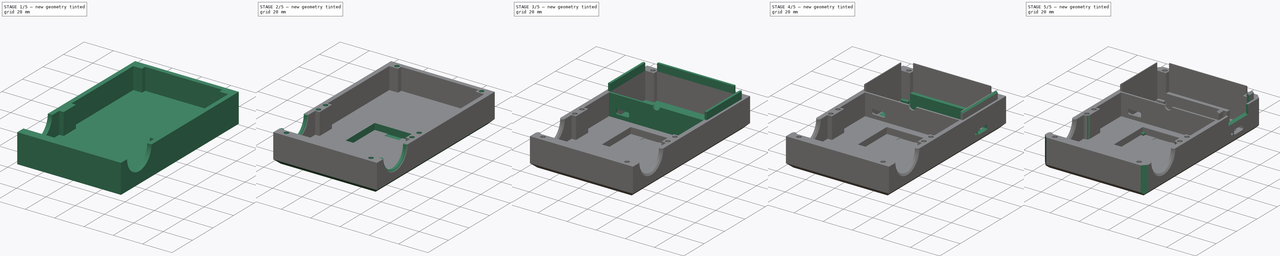
[diagram: build sequence overview — one tinted view per stage of 5, left to right]
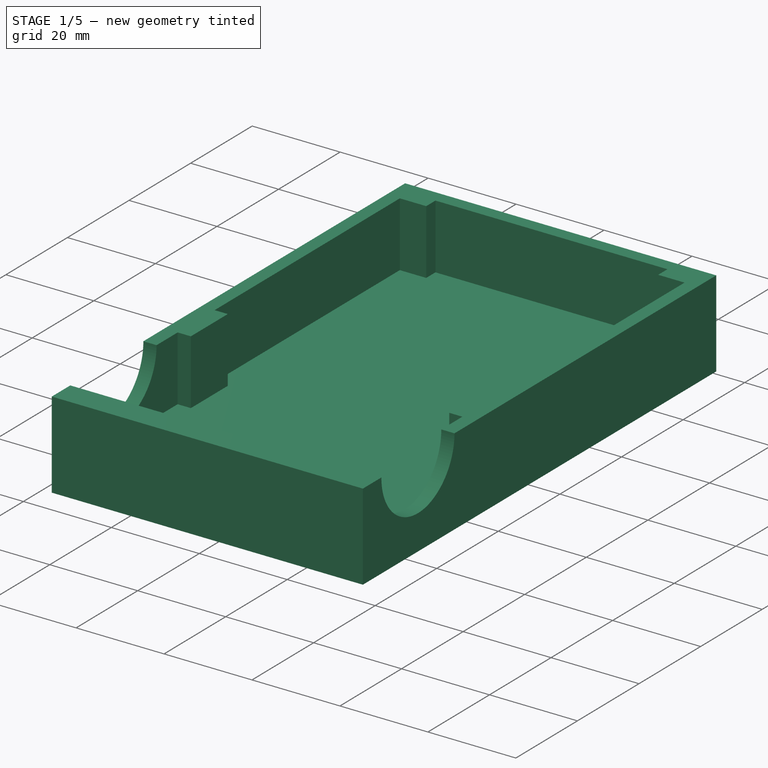
[diagram: stage 1 of 5 — iso view after this stage's code; geometry added in this stage tinted green]
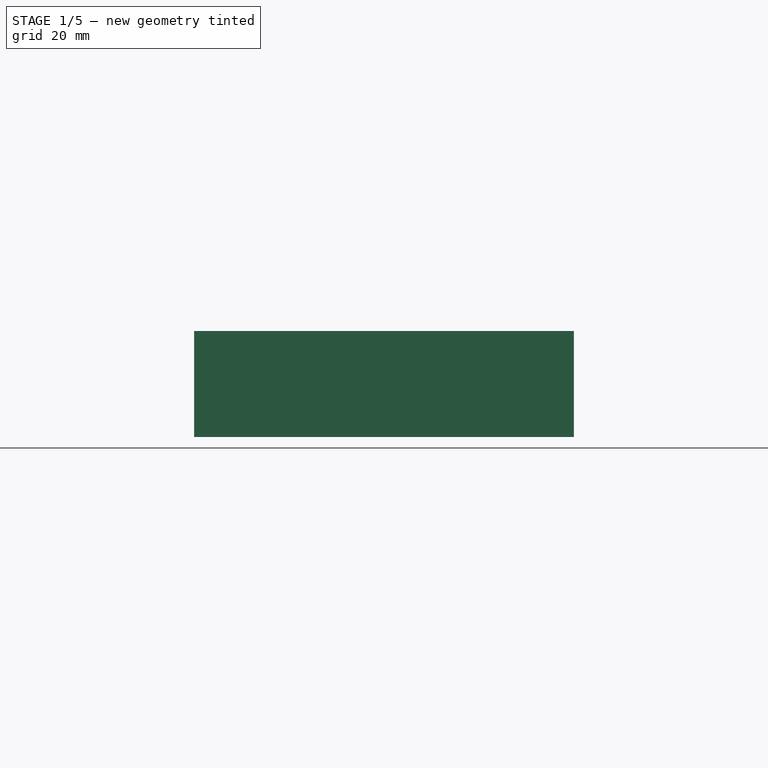
[diagram: stage 1 of 5 — front view after this stage's code; geometry added in this stage tinted green]
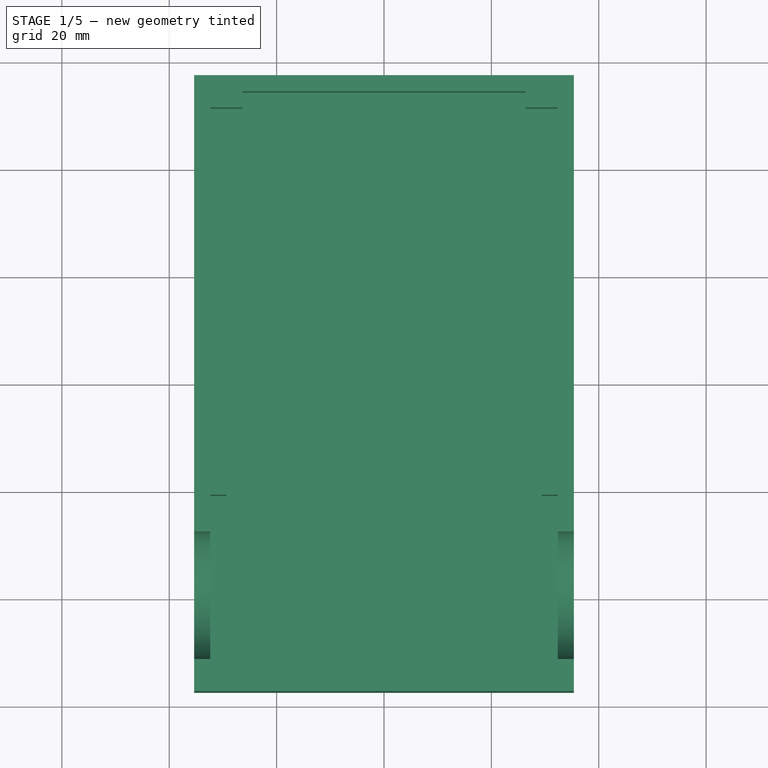
[diagram: stage 1 of 5 — top view after this stage's code; geometry added in this stage tinted green]
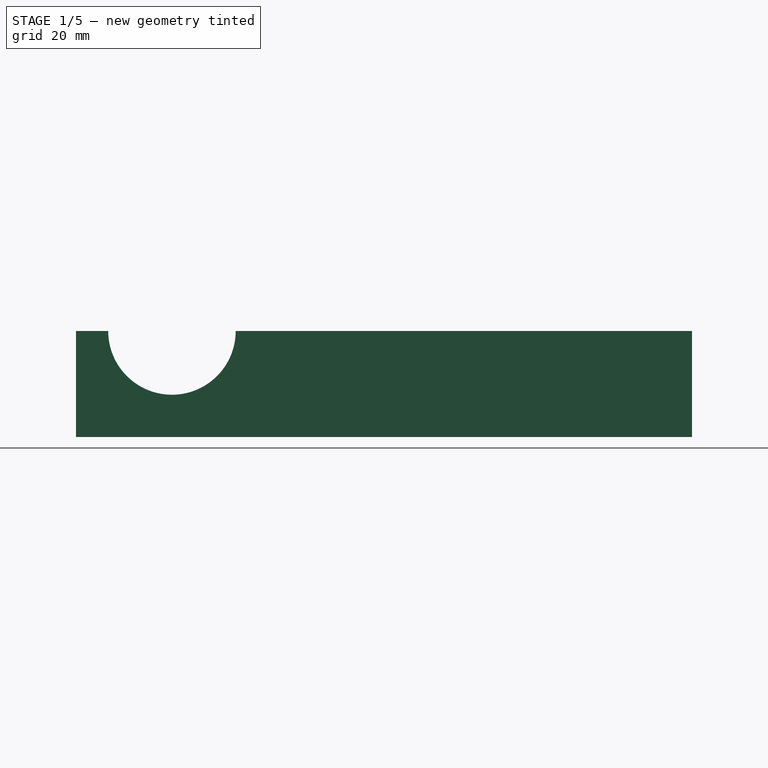
[diagram: stage 1 of 5 — right view after this stage's code; geometry added in this stage tinted green]
FCSTD DOCUMENT  (FreeCAD 1.1R20260325 (Git shallow))
Label: FinalCaseFront_Longer
License: All rights reserved
LicenseURL: https://en.wikipedia.org/wiki/All_rights_reserved
objects: Sketcher::SketchObject×22, PartDesign::Pad×11, PartDesign::Pocket×10, App::Point×4, PartDesign::Chamfer×3, PartDesign::Body×2, App::Part×2, Spreadsheet::Sheet×1, PartDesign::Revolution×1, PartDesign::Fillet×1
note: 124 computed .brp shape members not serialized (recipe doc carries the construction recipe); baked Part::Feature solids carry a one-line shape summary decoded from their .brp

FEATURE [Spreadsheet::Sheet] Spreadsheet  label="S"
  cells = A2='zero_width; B2(zero_width)=18; A3='zero_length; B3(zero_length)=23.65; A4='zero_usb_width; B4(zero_usb_width)=9; A5='zero_usb_nib; B5(zero_usb_nib)=1; A6='zero_pcb_thickness; B6(zero_pcb_thickness)=2.6; A7='zero_usb_thickness; B7(zero_usb_thickness)=3.25; C7='This is also the thickest top part; A8='zero_bottom_height; B8(zero_bottom_height)=1.25; A9='zero_bottom_chip_width; B9(zero_bottom_chip_width)=7; A10='zero_pad_width; B10(zero_pad_width)=2.5; A16='ads1115_width; B16(ads1115_width)=28; A17='ads1115_length; B17(ads1115_length)=17.2; A18='ads115_pcb_thickness; B18(ads115_pcb_thickness)=1.5; A19='ads115_holes; B19(ads115_holes)=2.4; A22='charger_width; B22(charger_width)=17.3; A23='charger_length; B23(charger_length)=28; A24='charger_usb_width; B24(charger_usb_width)=9; A25='charger_holes; B25(charger_holes)=1.5; A26='charger_pcb_thickness; B26(charger_pcb_thickness)=1.6; A27='charger_usb_height; B27(charger_usb_height)=4.2; A31='oled_width; B31(oled_width)=28.15; C31='https://thepihut.com/products/blue-0-96-oled-display-module-128x94?srsltid=AfmBOoqjCmrL4VVzqR_EE5hcJSdx-CRojF6zMIyrO1bcx0NnoYyN6zFz; A32='oled_length; B32(oled_length)=28.25; A33='oled_holes; B33(oled_holes)=1.95; A34='oled_pcb_thickness; B34(oled_pcb_thickness)=1.25; A35='oled_screen_height; B35(oled_screen_height)=1.75; A36='oled_screen_width; B36(oled_screen_width)=25.35; A37='oled_screen_length; B37(oled_screen_length)=16.85; A38='oled_hole_top_edge; B38(oled_hole_top_edge)=1.25; A39='oled_hole_side_edge; B39(oled_hole_side_edge)=1.25; A40='oled_hole_bottom_edge; B40(oled_hole_bottom_edge)=1.25; A41='oled_screen_bottom; B41(oled_screen_bottom)=3; A43='battery_width; B43(battery_width)=30; A44='battery_length; B44(battery_length)=42; A45='batter_depth; B45(batter_depth)=8.2; A49='switch_width; B49(switch_width)=12.3; A50='switch_length; B50(switch_length)=19.2; A51='switch_depth; B51(switch_depth)=11.1; A52='swith_length; B52(swith_length)=6; A53='switch_button_diameter; B53(switch_button_diameter)=3.5; A54='switch_button_height; B54(switch_button_height)=1.75; A55='switch_top_thingies; B55(switch_top_thingies)=0.6; A59='vr_length; B59(vr_length)=15.5; A60='vr_width; B60(vr_width)=10.25; A61='vr_back_depth; B61(vr_back_depth)=1.3; A62='vr_hole; B62(vr_hole)=3.7; A63='vr_hole_top_edge; B63(vr_hole_top_edge)=1; A65='sensor_minor_body_length; B65(sensor_minor_body_length)=24; A66='sensor_diameter; B66(sensor_diameter)=29.5; A67='sensor_length; B67(sensor_length)=43.5; A68='sensor_thread_diameter; B68(sensor_thread_diameter)=16; A69='sensor_thread_pitch; B69(sensor_thread_pitch)=1; A70='sensor_thread_per_inch; B70(sensor_thread_per_inch)=25.4; A71='sensor_thread_length; B71(sensor_thread_length)=7.5; A72='sensor_smaller_body_diameter; B72(sensor_smaller_body_diameter)=26.3; A74='nipple_minor_diameter; B74(nipple_minor_diameter)=12.12; A75='nipple_pitch; B75(nipple_pitch)=1.41; A76='nipple_thread_diameter; B76(nipple_thread_diameter)=13.75; A77='nipple_thread_per_inch; B77(nipple_thread_per_inch)=18; A78='nipple_thread_length; B78(nipple_thread_length)=12.6; A80='dimension_base_height; B80(dimension_base_height)=12; A81='dimension_extender_height; B81(dimension_extender_height)=42; A83='insert_diameter; B83(insert_diameter)=3.05; A85='dimension_wall_thickness; B85(dimension_wall_thickness)=3; A86='dimension_case_width; B86(dimension_case_width)=70.75; A87='dimension_case_length; B87(dimension_case_length)=85; A88='dimension_adapter_wall_thickness; B88(dimension_adapter_wall_thickness)=5; A89='dimension_face_thickness; B89(dimension_face_thickness)=5; A92='button_diameter; B92(button_diameter)=12.25; A93='dimension_oled_edge; B93(dimension_oled_edge)=33; A97='screw_diameter; B97(screw_diameter)=2.4; A98='screw_head_diameter; B98(screw_head_diameter)=4; A102='tollerance; B102(tollerance)=1; A103='insert_tollerance; B103(insert_tollerance)==B83 + 2 - B85; A105='dimension_screen_vert; B105(dimension_screen_vert)=11
FEATURE [Sketcher::SketchObject] Sketch
  ArcFitTolerance = 1e-06
  AttachmentSupport = -> [XY_Plane001]
  ExternalTypes = [0]
  FullyConstrained = true
  MakeInternals = false
  MapMode = 5
  _ExternalGeoVersion = 0
  expr: Constraints[8] = <<S>>.dimension_case_width
  expr: Constraints[9] = <<S>>.dimension_case_length + <<S>>.nipple_thread_diameter + <<S>>.dimension_adapter_wall_thickness * 2 + <<S>>.dimension_wall_thickness * 2
  sketch-geometry (4):
    g0: LineSegment StartX=-35.375 StartY=57.375 StartZ=0 EndX=-35.375 EndY=-57.375 EndZ=0
    g1: LineSegment StartX=-35.375 StartY=-57.375 StartZ=0 EndX=35.375 EndY=-57.375 EndZ=0
    g2: LineSegment StartX=35.375 StartY=-57.375 StartZ=0 EndX=35.375 EndY=57.375 EndZ=0
    g3: LineSegment StartX=35.375 StartY=57.375 StartZ=0 EndX=-35.375 EndY=57.375 EndZ=0
  constraints (11):
    c: Coincident(g0,g1)
    c: Coincident(g1,g2)
    c: Coincident(g2,g3)
    c: Coincident(g3,g0)
    c: Vertical(g0)
    c: Vertical(g2)
    c: Horizontal(g1)
    c: Horizontal(g3)
    c: DistanceX(g3,g3) = 70.75
    c: DistanceY(g0,g0) = 114.75
    c: Symmetric(g2,g0,g-1)
FEATURE [PartDesign::Pad] Pad  label="FacePad"
  Direction = (0,0,1)
  Length = 5
  Length2 = 10
  Profile = -> Sketch
  ReferenceAxis = -> Sketch [N_Axis]
  Refine = true
  SideType = 0
  Suppressed = false
  Type = 0
  Type2 = 0
  expr: Length = <<S>>.dimension_face_thickness
FEATURE [Sketcher::SketchObject] Sketch003
  ArcFitTolerance = 1e-06
  AttachmentSupport = -> [Pad]
  ExternalTypes = [0]
  FullyConstrained = true
  MakeInternals = false
  MapMode = 5
  Placement = pos=(0,0,5) rot=(0,0,1;0rad)
  _ExternalGeoVersion = 0
  expr: Constraints[20] = <<S>>.dimension_case_length + <<S>>.nipple_thread_diameter + <<S>>.dimension_adapter_wall_thickness * 2 + <<S>>.dimension_wall_thickness * 2
  expr: Constraints[8] = <<S>>.dimension_case_length + <<S>>.nipple_thread_diameter + <<S>>.dimension_adapter_wall_thickness * 2
  expr: Constraints[9] = <<S>>.dimension_case_width - <<S>>.dimension_wall_thickness * 2
  sketch-geometry (8):
    g0: LineSegment StartX=-32.375 StartY=54.375 StartZ=0 EndX=-32.375 EndY=-54.375 EndZ=0
    g1: LineSegment StartX=-32.375 StartY=-54.375 StartZ=0 EndX=32.375 EndY=-54.375 EndZ=0
    g2: LineSegment StartX=32.375 StartY=-54.375 StartZ=0 EndX=32.375 EndY=54.375 EndZ=0
    g3: LineSegment StartX=32.375 StartY=54.375 StartZ=0 EndX=-32.375 EndY=54.375 EndZ=0
    g4: LineSegment StartX=-35.375 StartY=57.375 StartZ=0 EndX=-35.375 EndY=-57.375 EndZ=0
    g5: LineSegment StartX=-35.375 StartY=-57.375 StartZ=0 EndX=35.375 EndY=-57.375 EndZ=0
    g6: LineSegment StartX=35.375 StartY=-57.375 StartZ=0 EndX=35.375 EndY=57.375 EndZ=0
    g7: LineSegment StartX=35.375 StartY=57.375 StartZ=0 EndX=-35.375 EndY=57.375 EndZ=0
  constraints (22):
    c: Coincident(g0,g1)
    c: Coincident(g1,g2)
    c: Coincident(g2,g3)
    c: Coincident(g3,g0)
    c: Vertical(g0)
    c: Vertical(g2)
    c: Horizontal(g1)
    c: Horizontal(g3)
    c: DistanceY(g0,g0) = 108.75
    c: DistanceX(g3,g3) = 64.75
    c: Symmetric(g2,g0,g-1)
    c: Coincident(g4,g5)
    c: Coincident(g5,g6)
    c: Coincident(g6,g7)
    c: Coincident(g7,g4)
    c: Vertical(g4)
    c: Vertical(g6)
    c: Horizontal(g5)
    c: Horizontal(g7)
    c: DistanceX(g7,g7) = 70.75
    c: DistanceY(g4,g4) = 114.75
    c: Symmetric(g6,g4,g-1)
FEATURE [PartDesign::Pad] Pad001  label="OuterWallPad"
  BaseFeature = -> Pad
  Direction = (0,0,1)
  Length = 14.75
  Length2 = 10
  Profile = -> Sketch003
  ReferenceAxis = -> Sketch003 [N_Axis]
  Refine = true
  SideType = 0
  Suppressed = false
  Type = 0
  Type2 = 0
  expr: Length = <<S>>.sensor_diameter / 2
FEATURE [Sketcher::SketchObject] Sketch004
  ArcFitTolerance = 1e-06
  AttachmentSupport = -> [Pad001]
  ExternalTypes = [0]
  FullyConstrained = true
  MakeInternals = false
  MapMode = 5
  Placement = pos=(0,0,5) rot=(0,0,1;0rad)
  _ExternalGeoVersion = 0
  expr: Constraints[35] = <<S>>.dimension_wall_thickness * 2
  expr: Constraints[36] = <<S>>.dimension_wall_thickness * 2
  expr: Constraints[42] = <<S>>.dimension_wall_thickness
  expr: Constraints[45] = <<S>>.dimension_wall_thickness
  expr: Constraints[46] = <<S>>.dimension_case_length + <<S>>.nipple_thread_diameter + <<S>>.dimension_adapter_wall_thickness * 2
  expr: Constraints[47] = (<<S>>.dimension_case_length + <<S>>.nipple_thread_diameter + <<S>>.dimension_adapter_wall_thickness * 2) / 2
  expr: Constraints[48] = <<S>>.dimension_case_width - <<S>>.dimension_wall_thickness * 2
  expr: Constraints[49] = (<<S>>.dimension_case_width - <<S>>.dimension_wall_thickness * 2) / 2
  expr: Constraints[56] = <<S>>.dimension_wall_thickness * 4
  expr: Constraints[58] = <<S>>.dimension_wall_thickness
  expr: Constraints[59] = <<S>>.dimension_wall_thickness
  sketch-geometry (20):
    g0: LineSegment StartX=-32.375 StartY=54.375 StartZ=0 EndX=-32.375 EndY=51.375 EndZ=0
    g1: LineSegment StartX=-32.375 StartY=51.375 StartZ=0 EndX=-26.375 EndY=51.375 EndZ=0
    g2: LineSegment StartX=-26.375 StartY=51.375 StartZ=0 EndX=-26.375 EndY=54.375 EndZ=0
    g3: LineSegment StartX=-26.375 StartY=54.375 StartZ=0 EndX=-32.375 EndY=54.375 EndZ=0
    g4: LineSegment StartX=32.375 StartY=54.375 StartZ=0 EndX=26.375 EndY=54.375 EndZ=0
    g5: LineSegment StartX=26.375 StartY=54.375 StartZ=0 EndX=26.375 EndY=51.375 EndZ=0
    g6: LineSegment StartX=26.375 StartY=51.375 StartZ=0 EndX=32.375 EndY=51.375 EndZ=0
    g7: LineSegment StartX=32.375 StartY=51.375 StartZ=0 EndX=32.375 EndY=54.375 EndZ=0
    g8: LineSegment StartX=-32.375 StartY=-54.375 StartZ=0 EndX=32.375 EndY=-54.375 EndZ=0
    g9: LineSegment StartX=32.375 StartY=-54.375 StartZ=0 EndX=32.375 EndY=-51.375 EndZ=0
    g10: LineSegment StartX=32.375 StartY=-51.375 StartZ=0 EndX=-32.375 EndY=-51.375 EndZ=0
    g11: LineSegment StartX=-32.375 StartY=-51.375 StartZ=0 EndX=-32.375 EndY=-54.375 EndZ=0
    g12: LineSegment StartX=-32.375 StartY=-8.775 StartZ=0 EndX=-32.375 EndY=-20.775 EndZ=0
    g13: LineSegment StartX=-29.375 StartY=-8.775 StartZ=0 EndX=-32.375 EndY=-8.775 EndZ=0
    g14: LineSegment StartX=32.375 StartY=-8.775 StartZ=0 EndX=29.375 EndY=-8.775 EndZ=0
    g15: LineSegment StartX=29.375 StartY=-8.775 StartZ=0 EndX=29.375 EndY=-20.775 EndZ=0
    g16: LineSegment StartX=29.375 StartY=-20.775 StartZ=0 EndX=32.375 EndY=-20.775 EndZ=0
    g17: LineSegment StartX=32.375 StartY=-20.775 StartZ=0 EndX=32.375 EndY=-8.775 EndZ=0
    g18: LineSegment StartX=-32.375 StartY=-20.775 StartZ=0 EndX=-29.375 EndY=-20.775 EndZ=0
    g19: LineSegment StartX=-29.375 StartY=-20.775 StartZ=0 EndX=-29.375 EndY=-8.775 EndZ=0
  constraints (60):
    c: Coincident(g0,g1)
    c: Coincident(g1,g2)
    c: Coincident(g2,g3)
    c: Coincident(g3,g0)
    c: Vertical(g0)
    c: Vertical(g2)
    c: Horizontal(g1)
    c: Horizontal(g3)
    c: Coincident(g4,g5)
    c: Coincident(g5,g6)
    c: Coincident(g6,g7)
    c: Coincident(g7,g4)
    c: Horizontal(g4)
    c: Horizontal(g6)
    c: Vertical(g5)
    c: Vertical(g7)
    c: Coincident(g8,g9)
    c: Coincident(g9,g10)
    c: Coincident(g10,g11)
    c: Coincident(g11,g8)
    c: Horizontal(g8)
    c: Horizontal(g10)
    c: Vertical(g9)
    c: Vertical(g11)
    c: Coincident(g13,g12)
    c: Vertical(g12)
    c: Horizontal(g13)
    c: Coincident(g14,g15)
    c: Coincident(g15,g16)
    c: Coincident(g16,g17)
    c: Coincident(g17,g14)
    c: Horizontal(g14)
    c: Horizontal(g16)
    c: Vertical(g15)
    c: Vertical(g17)
    c: DistanceX(g1,g1) = 6
    c: DistanceX(g6,g6) = 6
    c: DistanceX(g12,g0) = 0
    c: DistanceX(g6,g14) = 0
    c: DistanceX(g16,g9) = 0
    c: DistanceX(g10,g12) = 0
    c: DistanceY(g4,g2) = 0
    c: DistanceY(g0,g0) = 3
    c: DistanceY(g5,g1) = 0
    c: DistanceY(g14,g13) = 0
    c: DistanceY(g11,g11) = 3
    c: DistanceY(g8,g0) = 108.75
    c: DistanceY(g-1,g0) = 54.375
    c: DistanceX(g0,g4) = 64.75
    c: DistanceX(g0,g-1) = 32.375
    c: DistanceY(g10,g12) = 30.6
    c: Coincident(g12,g18)
    c: Horizontal(g18)
    c: Coincident(g18,g19)
    c: Coincident(g19,g13)
    c: Vertical(g19)
    c: DistanceY(g12,g12) = 12
    c: DistanceY(g18,g15) = 0
    c: DistanceX(g18,g18) = 3
    c: DistanceX(g16,g16) = 3
FEATURE [PartDesign::Pad] Pad002  label="InnerWallPad"
  BaseFeature = -> Pad001
  Direction = (0,0,1)
  Length = 14.75
  Length2 = 10
  Profile = -> Sketch004
  ReferenceAxis = -> Sketch004 [N_Axis]
  Refine = true
  SideType = 0
  Suppressed = false
  Type = 0
  Type2 = 0
  expr: Length = <<S>>.sensor_diameter / 2
FEATURE [Sketcher::SketchObject] Sketch005
  ArcFitTolerance = 1e-06
  AttachmentSupport = -> [Pad002]
  ExternalTypes = [0]
  FullyConstrained = true
  MakeInternals = false
  MapMode = 5
  Placement = pos=(-35.375,0,0) rot=(0.57735,-0.57735,-0.57735;2.0944rad)
  _ExternalGeoVersion = 0
  expr: Constraints[0] = <<S>>.nipple_thread_diameter + <<S>>.dimension_adapter_wall_thickness * 2
  expr: Constraints[1] = <<S>>.dimension_face_thickness + <<S>>.sensor_diameter / 2
  expr: Constraints[2] = (<<S>>.dimension_case_length + <<S>>.nipple_thread_diameter + <<S>>.dimension_adapter_wall_thickness * 2 + <<S>>.dimension_wall_thickness * 2) / 2 - <<S>>.dimension_wall_thickness * 2 - (<<S>>.nipple_thread_diameter + <<S>>.dimension_adapter_wall_thickness * 2) / 2
  sketch-geometry (1):
    g0: Circle CenterX=39.5 CenterY=19.75 CenterZ=0 NormalX=0 NormalY=0 NormalZ=1 AngleXU=0 Radius=11.875
  constraints (3):
    c: Diameter(g0) = 23.75
    c: DistanceY(g-1,g0) = 19.75
    c: DistanceX(g-1,g0) = 39.5
FEATURE [PartDesign::Pocket] Pocket  label="InsertPocket"
  BaseFeature = -> Pad002
  Direction = (1,0,0)
  Length = 5
  Length2 = 5
  Profile = -> Sketch005
  ReferenceAxis = -> Sketch005 [N_Axis]
  Refine = true
  SideType = 0
  Suppressed = false
  Type = 1
  Type2 = 0
FEATURE [PartDesign::Body] Body  label="FinalCaseBaseBody"
  AllowCompound = false
  Group = -> [Sketch,Pad,Sketch003,Pad001,Sketch004,Pad002,Sketch005,Pocket,Sketch006,Revolution,Sketch007,Chamfer,Pocket001,Sketch008,Pocket002,Sketch009,Pocket003,Sketch010,Pocket004,Sketch012,Pocket006,Sketch020,Pad003,Sketch021,Pocket007,Sketch022,Pad004,Sketch023,Pocket008,Sketch024,Pad005,Sketch025,Pad006,Sketch026,Pocket009,Sketch027,Pad007,Chamfer001,Sketch028,Pocket010,Sketch029,Pad008,Sketch030,+3 more]
  Origin = -> Origin001
  Tip = -> Fillet
FEATURE [App::Part] Part  label="FinalCaseBasePart"
  Group = -> [Body]
  Origin = -> Origin
FEATURE [App::Point] Origin005
  Role = Origin
FEATURE [App::Point] Origin007  label="Origin008"
  Role = Origin
FEATURE [Sketcher::SketchObject] Sketch031
  ArcFitTolerance = 1e-06
  AttachmentSupport = -> [Origin006]
  ExternalTypes = [0]
  FullyConstrained = false
  MakeInternals = false
  MapMode = 5
  _ExternalGeoVersion = 1
  expr: Constraints[7] = 28.15 - 0.2
  sketch-geometry (8):
    g0: LineSegment StartX=-13.98 StartY=10.9 StartZ=0 EndX=-13.98 EndY=-17.15 EndZ=0
    g1: LineSegment StartX=-13.98 StartY=-17.15 StartZ=0 EndX=13.97 EndY=-17.15 EndZ=0
    g2: LineSegment StartX=13.97 StartY=-17.15 StartZ=0 EndX=13.97 EndY=10.9 EndZ=0
    g3: LineSegment StartX=13.97 StartY=10.9 StartZ=0 EndX=5.05 EndY=10.9 EndZ=0
    g4: LineSegment StartX=-5.05 StartY=10.9 StartZ=0 EndX=-5.05 EndY=7.6 EndZ=0
    g5: LineSegment StartX=-5.05 StartY=7.6 StartZ=0 EndX=5.05 EndY=7.6 EndZ=0
    g6: LineSegment StartX=5.05 StartY=7.6 StartZ=0 EndX=5.05 EndY=10.9 EndZ=0
    g7: LineSegment StartX=-5.05 StartY=10.9 StartZ=0 EndX=-13.98 EndY=10.9 EndZ=0
  constraints (23):
    c: Coincident(g0,g1)
    c: Coincident(g1,g2)
    c: Coincident(g2,g3)
    c: Coincident(g7,g0)
    c: Vertical(g0)
    c: Vertical(g2)
    c: Horizontal(g1)
    c: DistanceX(g7,g3) = 27.95
    c: DistanceY(g2,g2) = 28.05
    c: DistanceX(g-1,g2) = 13.97
    c: DistanceY(g-1,g2) = 10.9
    c: Vertical(g4)
    c: Coincident(g4,g5)
    c: Horizontal(g5)
    c: Coincident(g5,g6)
    c: Vertical(g6)
    c: DistanceX(g5,g5) = 10.1
    c: DistanceX(g-1,g5) = 5.05
    c: DistanceY(g4,g4) = 3.3
    c: Horizontal(g3)
    c: Horizontal(g7)
    c: Coincident(g4,g7)
    c: Coincident(g6,g3)
FEATURE [PartDesign::Pad] Pad010  label="CoverPad"
  Direction = (0,0,1)
  Length = 0.8
  Length2 = 10
  Profile = -> Sketch031
  ReferenceAxis = -> Sketch031 [N_Axis]
  Refine = true
  SideType = 0
  Suppressed = false
  Type = 0
  Type2 = 0
FEATURE [PartDesign::Body] Body001  label="OLED_CoverBody"
  AllowCompound = true
  Group = -> [Sketch031,Pad010]
  Origin = -> Origin006
  Tip = -> Pad010
FEATURE [App::Part] Part001  label="OLED_Cover"
  Group = -> [Body001]
  Origin = -> Origin004
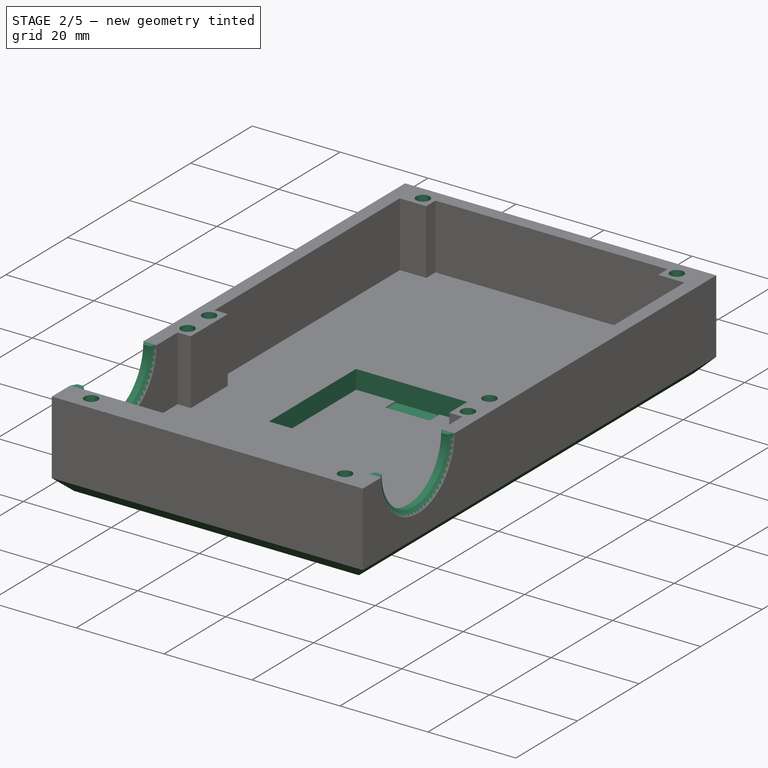
[diagram: stage 2 of 5 — iso view after this stage's code; geometry added in this stage tinted green]
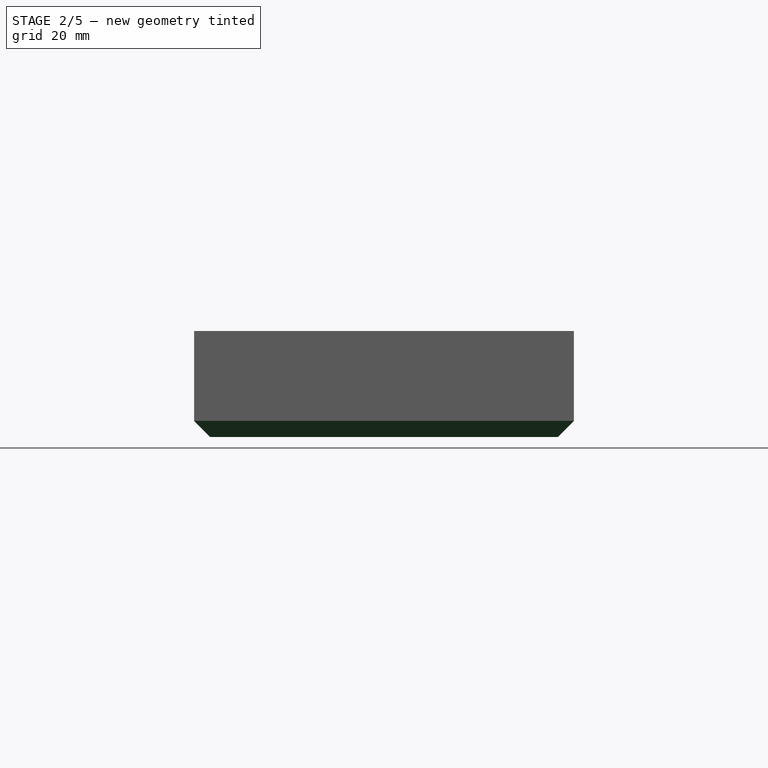
[diagram: stage 2 of 5 — front view after this stage's code; geometry added in this stage tinted green]
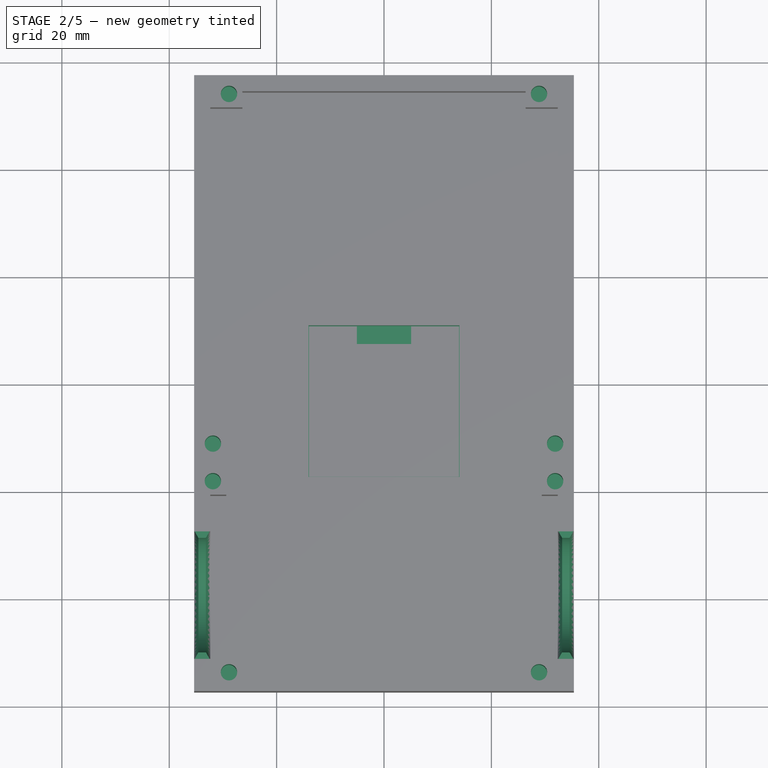
[diagram: stage 2 of 5 — top view after this stage's code; geometry added in this stage tinted green]
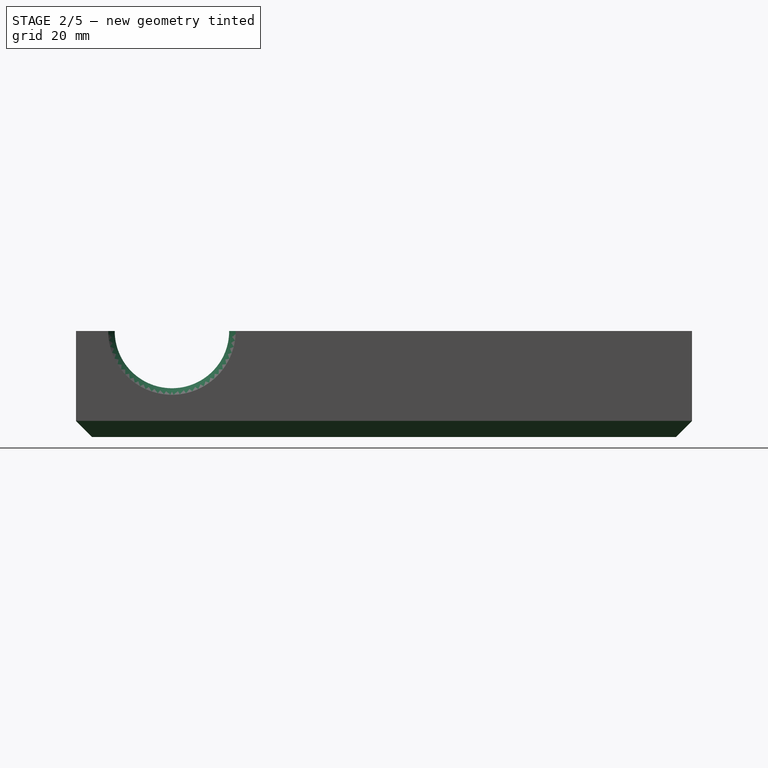
[diagram: stage 2 of 5 — right view after this stage's code; geometry added in this stage tinted green]
FEATURE [Sketcher::SketchObject] Sketch006
  ArcFitTolerance = 1e-06
  AttachmentSupport = -> [Pocket]
  ExternalTypes = [0]
  FullyConstrained = true
  MakeInternals = false
  MapMode = 5
  Placement = pos=(0,0,19.75) rot=(0,0,1;0rad)
  _ExternalGeoVersion = 0
  expr: Constraints[38] = <<S>>.dimension_case_width - 0.2
  expr: Constraints[39] = (<<S>>.dimension_case_width - 0.2) / 2
  expr: Constraints[40] = (<<S>>.dimension_case_length + <<S>>.nipple_thread_diameter + <<S>>.dimension_adapter_wall_thickness * 2 + <<S>>.dimension_wall_thickness * 2) / 2 - <<S>>.dimension_wall_thickness * 2
  sketch-geometry (14):
    g0: LineSegment StartX=-33.175 StartY=-50.1626 StartZ=0 EndX=-34.575 EndY=-50.1626 EndZ=0
    g1: LineSegment StartX=-34.575 StartY=-50.1626 StartZ=0 EndX=-35.275 EndY=-51.375 EndZ=0
    g2: LineSegment StartX=-35.275 StartY=-51.375 StartZ=0 EndX=-34.575 EndY=-52.5874 EndZ=0
    g3: LineSegment StartX=-34.575 StartY=-52.5874 StartZ=0 EndX=-33.175 EndY=-52.5874 EndZ=0
    g4: LineSegment StartX=-33.175 StartY=-52.5874 StartZ=0 EndX=-32.475 EndY=-51.375 EndZ=0
    g5: LineSegment StartX=-32.475 StartY=-51.375 StartZ=0 EndX=-33.175 EndY=-50.1626 EndZ=0
    g6: Circle [constr] CenterX=-33.875 CenterY=-51.375 CenterZ=0 NormalX=0 NormalY=0 NormalZ=1 AngleXU=0 Radius=1.4
    g7: LineSegment StartX=34.575 StartY=-50.1626 StartZ=0 EndX=33.175 EndY=-50.1626 EndZ=0
    g8: LineSegment StartX=33.175 StartY=-50.1626 StartZ=0 EndX=32.475 EndY=-51.375 EndZ=0
    g9: LineSegment StartX=32.475 StartY=-51.375 StartZ=0 EndX=33.175 EndY=-52.5874 EndZ=0
    g10: LineSegment StartX=33.175 StartY=-52.5874 StartZ=0 EndX=34.575 EndY=-52.5874 EndZ=0
    g11: LineSegment StartX=34.575 StartY=-52.5874 StartZ=0 EndX=35.275 EndY=-51.375 EndZ=0
    g12: LineSegment StartX=35.275 StartY=-51.375 StartZ=0 EndX=34.575 EndY=-50.1626 EndZ=0
    g13: Circle [constr] CenterX=33.875 CenterY=-51.375 CenterZ=0 NormalX=0 NormalY=0 NormalZ=1 AngleXU=0 Radius=1.4
  constraints (34):
    c: Coincident(g0,g1)
    c: Coincident(g1,g2)
    c: Coincident(g2,g3)
    c: Coincident(g3,g4)
    c: Coincident(g4,g5)
    c: Coincident(g5,g0)
    c: Equal(g0, g1-g5) x5
    c: PointOnObject(g0,g6)
    c: PointOnObject(g1,g6)
    c: PointOnObject(g2,g6)
    c: PointOnObject(g3,g6)
    c: PointOnObject(g4,g6)
    c: PointOnObject(g5,g6)
    c: Radius(g6) = 1.4
    c: Coincident(g7,g8)
    c: Coincident(g8,g9)
    c: Coincident(g9,g10)
    c: Coincident(g10,g11)
    c: Coincident(g11,g12)
    c: Coincident(g12,g7)
    c: Equal(g7, g8-g12) x5
    c: PointOnObject(g7,g13)
    c: PointOnObject(g8,g13)
    c: PointOnObject(g9,g13)
    c: PointOnObject(g10,g13)
    c: PointOnObject(g11,g13)
    c: PointOnObject(g12,g13)
    c: Radius(g13) = 1.4
    c: DistanceY(g0,g0) = 0
    c: DistanceY(g7,g7) = 0
    c: DistanceX(g1,g11) = 70.55
    c: DistanceX(g1,g-1) = 35.275
    c: DistanceY(g6,g-1) = 51.375
    c: DistanceY(g6,g13) = 0
FEATURE [PartDesign::Revolution] Revolution  label="InsertRevolution"
  Angle = 180
  Angle2 = 60
  Axis = (-1,0,0)
  Base = (-35.375,-39.5,19.75)
  BaseFeature = -> Pocket
  FuseOrder = 1
  Profile = -> Sketch006
  ReferenceAxis = -> Pocket [Edge7]
  Refine = true
  Reversed = true
  Suppressed = false
  Type = 0
FEATURE [Sketcher::SketchObject] Sketch007
  ArcFitTolerance = 1e-06
  AttachmentSupport = -> [Revolution]
  ExternalTypes = [0]
  FullyConstrained = true
  MakeInternals = false
  MapMode = 5
  Placement = pos=(0,0,19.75) rot=(0,0,1;0rad)
  _ExternalGeoVersion = 0
  expr: Constraints[10] = <<S>>.dimension_wall_thickness
  expr: Constraints[15] = <<S>>.dimension_case_width / 2 - <<S>>.dimension_wall_thickness - <<S>>.dimension_wall_thickness / 2 + <<S>>.tollerance
  expr: Constraints[16] = <<S>>.dimension_case_width / 2 - <<S>>.dimension_wall_thickness - <<S>>.dimension_wall_thickness / 2 + <<S>>.tollerance
  expr: Constraints[17] = (<<S>>.dimension_case_length + <<S>>.nipple_thread_diameter + <<S>>.dimension_adapter_wall_thickness * 2 + <<S>>.dimension_wall_thickness * 2) / 2 - <<S>>.dimension_wall_thickness - <<S>>.dimension_wall_thickness / 2 + <<S>>.tollerance
  expr: Constraints[18] = (<<S>>.dimension_case_length + <<S>>.nipple_thread_diameter + <<S>>.dimension_adapter_wall_thickness * 2 + <<S>>.dimension_wall_thickness * 2) / 2 - <<S>>.dimension_wall_thickness - <<S>>.dimension_wall_thickness / 2 + <<S>>.tollerance
  expr: Constraints[19] = <<S>>.dimension_wall_thickness * 2 + <<S>>.tollerance
  expr: Constraints[20] = (<<S>>.dimension_case_length + <<S>>.nipple_thread_diameter + <<S>>.dimension_adapter_wall_thickness * 2 + <<S>>.dimension_wall_thickness * 2) / 2 - <<S>>.dimension_wall_thickness * 2 - 30.6 - <<S>>.dimension_wall_thickness + <<S>>.tollerance / 2
  expr: Constraints[21] = <<S>>.dimension_wall_thickness
  expr: Constraints[23] = <<S>>.dimension_wall_thickness
  expr: Constraints[7] = <<S>>.insert_diameter
  expr: Constraints[8] = <<S>>.dimension_wall_thickness
  sketch-geometry (8):
    g0: Circle CenterX=-28.875 CenterY=-53.875 CenterZ=0 NormalX=0 NormalY=0 NormalZ=1 AngleXU=0 Radius=1.525
    g1: Circle CenterX=28.875 CenterY=-53.875 CenterZ=0 NormalX=0 NormalY=0 NormalZ=1 AngleXU=0 Radius=1.525
    g2: Circle CenterX=-31.875 CenterY=-18.275 CenterZ=0 NormalX=0 NormalY=0 NormalZ=1 AngleXU=0 Radius=1.525
    g3: Circle CenterX=31.875 CenterY=-18.275 CenterZ=0 NormalX=0 NormalY=0 NormalZ=1 AngleXU=0 Radius=1.525
    g4: Circle CenterX=-31.875 CenterY=-11.275 CenterZ=0 NormalX=0 NormalY=0 NormalZ=1 AngleXU=0 Radius=1.525
    g5: Circle CenterX=31.875 CenterY=-11.275 CenterZ=0 NormalX=0 NormalY=0 NormalZ=1 AngleXU=0 Radius=1.525
    g6: Circle CenterX=-28.875 CenterY=53.875 CenterZ=0 NormalX=0 NormalY=0 NormalZ=1 AngleXU=0 Radius=1.525
    g7: Circle CenterX=28.875 CenterY=53.875 CenterZ=0 NormalX=0 NormalY=0 NormalZ=1 AngleXU=0 Radius=1.525
  constraints (18):
    c: Equal(g0, g1-g7) x7
    c: Diameter(g0) = 3.05
    c: DistanceX(g4,g6) = 3
    c: DistanceX(g5,g3) = 0
    c: DistanceX(g7,g5) = 3
    c: DistanceY(g6,g7) = 0
    c: DistanceY(g5,g4) = 0
    c: DistanceY(g2,g3) = 0
    c: DistanceY(g0,g1) = 0
    c: DistanceX(g4,g-1) = 31.875
    c: DistanceX(g-1,g5) = 31.875
    c: DistanceY(g0,g-1) = 53.875
    c: DistanceY(g-1,g6) = 53.875
    c: DistanceY(g2,g4) = 7
    c: DistanceY(g2,g-1) = 18.275
    c: DistanceX(g2,g0) = 3
    c: DistanceX(g2,g4) = 0
    c: DistanceX(g1,g3) = 3
FEATURE [PartDesign::Chamfer] Chamfer  label="OuterEdgeChamfer"
  Angle = 45
  Base = -> Revolution [Edge25,Edge45,Edge52,Edge85]
  BaseFeature = -> Revolution
  ChamferType = 0
  FlipDirection = false
  Refine = true
  Size = 3
  Size2 = 1
  SupportTransform = false
  Suppressed = false
  UseAllEdges = false
  expr: Size = <<S>>.dimension_wall_thickness
FEATURE [PartDesign::Pocket] Pocket001  label="InsertPockets"
  BaseFeature = -> Chamfer
  Direction = (0,0,-1)
  Length = 10
  Length2 = 5
  Profile = -> Sketch007
  ReferenceAxis = -> Sketch007 [N_Axis]
  Refine = true
  SideType = 0
  Suppressed = false
  Type = 0
  Type2 = 0
FEATURE [Sketcher::SketchObject] Sketch008
  ArcFitTolerance = 1e-06
  AttachmentSupport = -> [Pocket001]
  ExternalTypes = [0]
  FullyConstrained = true
  MakeInternals = false
  MapMode = 5
  Placement = pos=(0,0,5) rot=(0,0,1;0rad)
  _ExternalGeoVersion = 0
  expr: Constraints[10] = <<S>>.oled_width / 2
  expr: Constraints[11] = <<S>>.dimension_screen_vert
  expr: Constraints[8] = <<S>>.oled_width
  expr: Constraints[9] = <<S>>.oled_length
  sketch-geometry (4):
    g0: LineSegment StartX=-14.075 StartY=11 StartZ=0 EndX=-14.075 EndY=-17.25 EndZ=0
    g1: LineSegment StartX=-14.075 StartY=-17.25 StartZ=0 EndX=14.075 EndY=-17.25 EndZ=0
    g2: LineSegment StartX=14.075 StartY=-17.25 StartZ=0 EndX=14.075 EndY=11 EndZ=0
    g3: LineSegment StartX=14.075 StartY=11 StartZ=0 EndX=-14.075 EndY=11 EndZ=0
  constraints (12):
    c: Coincident(g0,g1)
    c: Coincident(g1,g2)
    c: Coincident(g2,g3)
    c: Coincident(g3,g0)
    c: Vertical(g0)
    c: Vertical(g2)
    c: Horizontal(g1)
    c: Horizontal(g3)
    c: DistanceX(g3,g3) = 28.15
    c: DistanceY(g2,g2) = 28.25
    c: DistanceX(g-1,g2) = 14.075
    c: DistanceY(g-1,g2) = 11
FEATURE [PartDesign::Pocket] Pocket002  label="OledBoardPocket"
  BaseFeature = -> Pocket001
  Direction = (0,0,-1)
  Length = 4.5
  Length2 = 5
  Profile = -> Sketch008
  ReferenceAxis = -> Sketch008 [N_Axis]
  Refine = true
  SideType = 0
  Suppressed = false
  Type = 0
  Type2 = 0
  expr: Length = 4.5
FEATURE [Sketcher::SketchObject] Sketch009
  ArcFitTolerance = 1e-06
  AttachmentSupport = -> [Pocket002]
  ExternalTypes = [0]
  FullyConstrained = true
  MakeInternals = false
  MapMode = 5
  Placement = pos=(0,0,0.5) rot=(0,0,1;0rad)
  _ExternalGeoVersion = 0
  expr: Constraints[10] = <<S>>.oled_screen_length
  expr: Constraints[11] = <<S>>.dimension_screen_vert - 4.65
  expr: Constraints[8] = <<S>>.oled_screen_width
  expr: Constraints[9] = <<S>>.oled_screen_width / 2
  sketch-geometry (4):
    g0: LineSegment StartX=-12.675 StartY=6.35 StartZ=0 EndX=-12.675 EndY=-10.5 EndZ=0
    g1: LineSegment StartX=-12.675 StartY=-10.5 StartZ=0 EndX=12.675 EndY=-10.5 EndZ=0
    g2: LineSegment StartX=12.675 StartY=-10.5 StartZ=0 EndX=12.675 EndY=6.35 EndZ=0
    g3: LineSegment StartX=12.675 StartY=6.35 StartZ=0 EndX=-12.675 EndY=6.35 EndZ=0
  constraints (12):
    c: Coincident(g0,g1)
    c: Coincident(g1,g2)
    c: Coincident(g2,g3)
    c: Coincident(g3,g0)
    c: Vertical(g0)
    c: Vertical(g2)
    c: Horizontal(g1)
    c: Horizontal(g3)
    c: DistanceX(g1,g1) = 25.35
    c: DistanceX(g0,g-1) = 12.675
    c: DistanceY(g0,g0) = 16.85
    c: DistanceY(g-1,g0) = 6.35
FEATURE [PartDesign::Pocket] Pocket003  label="OledInnerScreenPocket"
  BaseFeature = -> Pocket002
  Direction = (0,0,-1)
  Length = 0.02
  Length2 = 5
  Profile = -> Sketch009
  ReferenceAxis = -> Sketch009 [N_Axis]
  Refine = true
  SideType = 0
  Suppressed = false
  Type = 0
  Type2 = 0
  expr: Length = 0.02
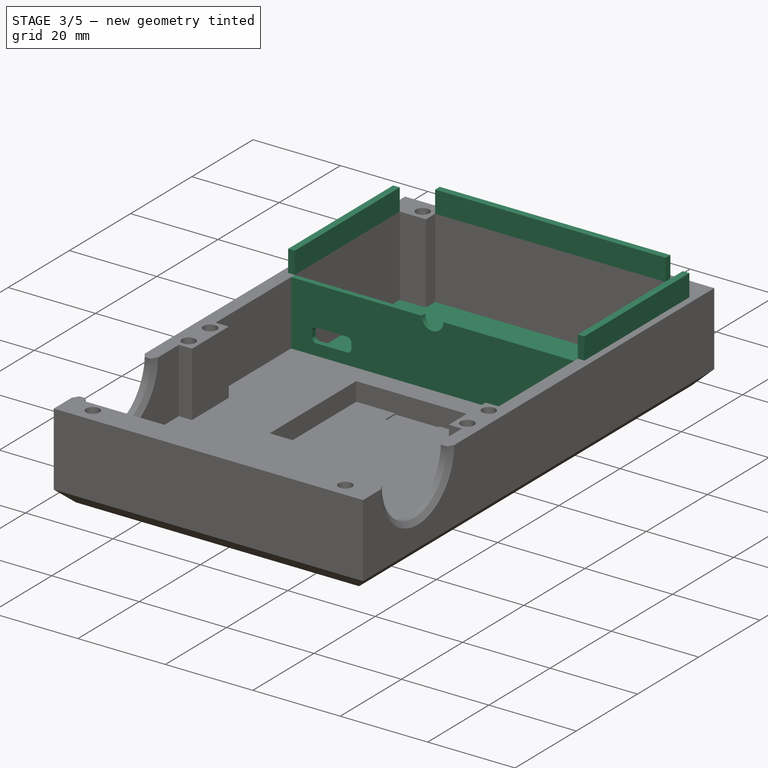
[diagram: stage 3 of 5 — iso view after this stage's code; geometry added in this stage tinted green]
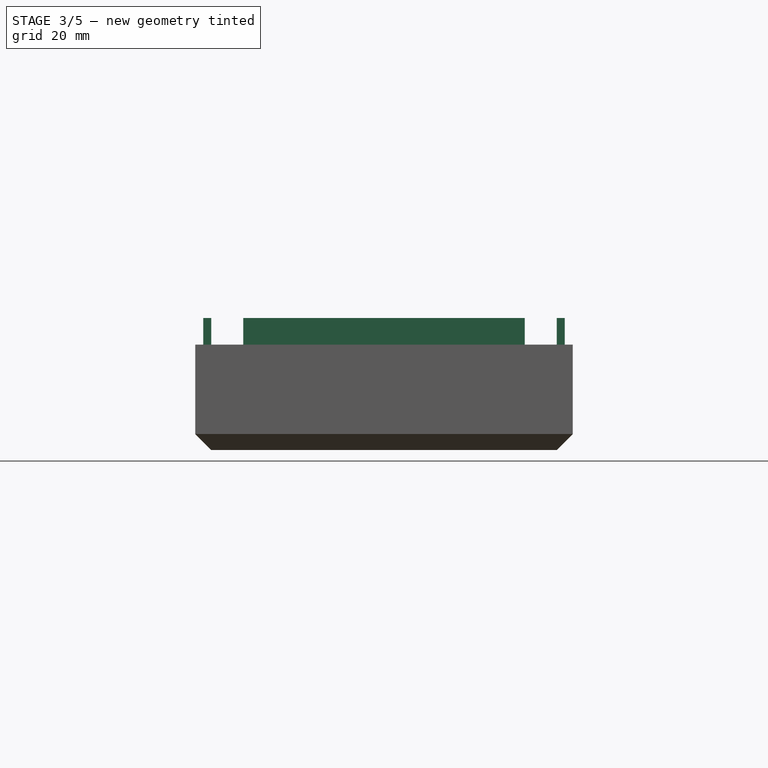
[diagram: stage 3 of 5 — front view after this stage's code; geometry added in this stage tinted green]
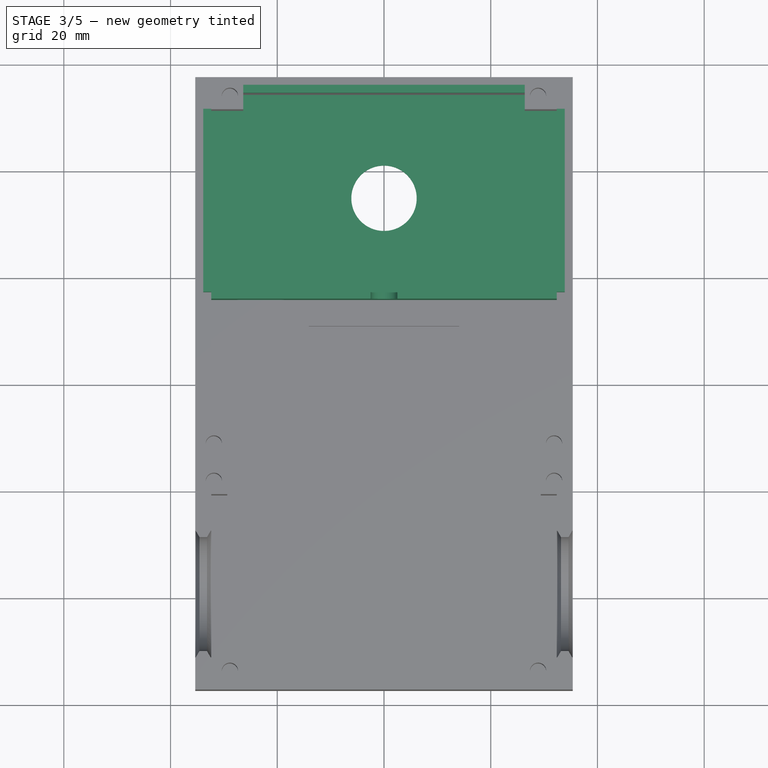
[diagram: stage 3 of 5 — top view after this stage's code; geometry added in this stage tinted green]
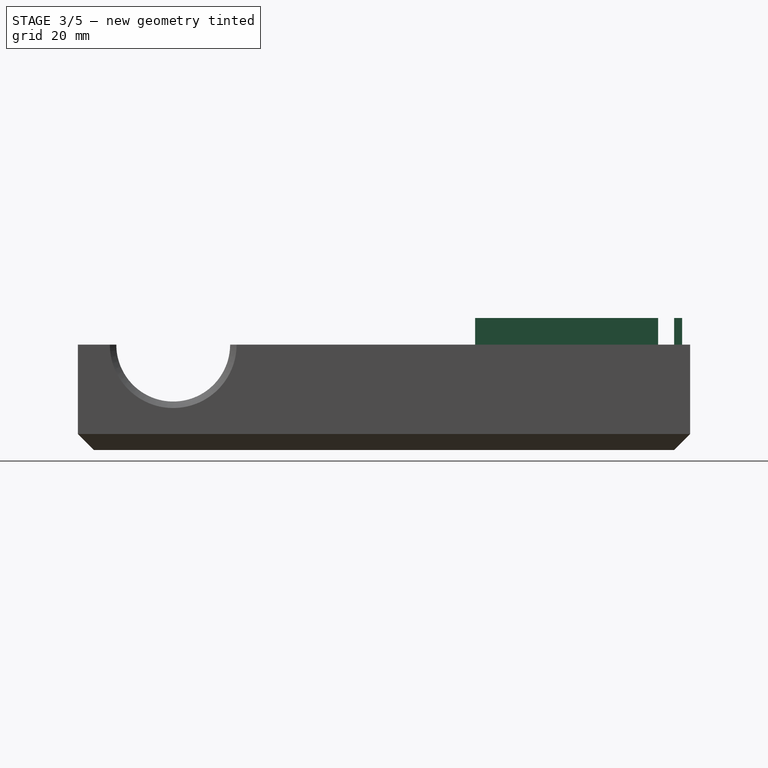
[diagram: stage 3 of 5 — right view after this stage's code; geometry added in this stage tinted green]
FEATURE [Sketcher::SketchObject] Sketch010
  ArcFitTolerance = 1e-06
  AttachmentSupport = -> [Pocket003]
  ExternalTypes = [0]
  FullyConstrained = true
  MakeInternals = false
  MapMode = 5
  Placement = pos=(0,0,0.48) rot=(0,0,1;0rad)
  _ExternalGeoVersion = 0
  expr: Constraints[10] = <<S>>.dimension_screen_vert - 4.65
  expr: Constraints[11] = <<S>>.oled_screen_length - <<S>>.oled_screen_bottom
  expr: Constraints[8] = <<S>>.oled_screen_width
  expr: Constraints[9] = <<S>>.oled_screen_width / 2
  sketch-geometry (4):
    g0: LineSegment StartX=-12.675 StartY=6.35 StartZ=0 EndX=-12.675 EndY=-7.5 EndZ=0
    g1: LineSegment StartX=-12.675 StartY=-7.5 StartZ=0 EndX=12.675 EndY=-7.5 EndZ=0
    g2: LineSegment StartX=12.675 StartY=-7.5 StartZ=0 EndX=12.675 EndY=6.35 EndZ=0
    g3: LineSegment StartX=12.675 StartY=6.35 StartZ=0 EndX=-12.675 EndY=6.35 EndZ=0
  constraints (12):
    c: Coincident(g0,g1)
    c: Coincident(g1,g2)
    c: Coincident(g2,g3)
    c: Coincident(g3,g0)
    c: Vertical(g0)
    c: Vertical(g2)
    c: Horizontal(g1)
    c: Horizontal(g3)
    c: DistanceX(g3,g3) = 25.35
    c: DistanceX(g0,g-1) = 12.675
    c: DistanceY(g-1,g0) = 6.35
    c: DistanceY(g0,g0) = 13.85
FEATURE [PartDesign::Pocket] Pocket004  label="OledScreenPocket"
  BaseFeature = -> Pocket003
  Direction = (0,0,-1)
  Length = 5
  Length2 = 5
  Profile = -> Sketch010
  ReferenceAxis = -> Sketch010 [N_Axis]
  Refine = true
  SideType = 0
  Suppressed = false
  Type = 1
  Type2 = 0
FEATURE [Sketcher::SketchObject] Sketch012
  ArcFitTolerance = 1e-06
  AttachmentSupport = -> [Pocket004]
  ExternalTypes = [0]
  FullyConstrained = true
  MakeInternals = false
  MapMode = 5
  Placement = pos=(0,0,5) rot=(0,0,1;0rad)
  _ExternalGeoVersion = 0
  expr: Constraints[0] = <<S>>.button_diameter
  expr: Constraints[2] = 35
  sketch-geometry (1):
    g0: Circle CenterX=0 CenterY=35 CenterZ=0 NormalX=0 NormalY=0 NormalZ=1 AngleXU=0 Radius=6.125
  constraints (3):
    c: Diameter(g0) = 12.25
    c: PointOnObject(g0,g-2)
    c: DistanceY(g-1,g0) = 35
FEATURE [PartDesign::Pocket] Pocket006  label="ButtonPocket"
  BaseFeature = -> Pocket004
  Direction = (0,0,-1)
  Length = 5
  Length2 = 5
  Profile = -> Sketch012
  ReferenceAxis = -> Sketch012 [N_Axis]
  Refine = true
  SideType = 0
  Suppressed = false
  Type = 1
  Type2 = 0
FEATURE [App::Point] Origin002  label="Origin"
  Role = Origin
FEATURE [App::Point] Origin003  label="Origin"
  Role = Origin
FEATURE [Sketcher::SketchObject] Sketch020
  ArcFitTolerance = 1e-06
  AttachmentSupport = -> [Revolution]
  ExternalTypes = [0]
  FullyConstrained = true
  MakeInternals = false
  MapMode = 5
  Placement = pos=(0,0,5) rot=(0,0,1;0rad)
  _ExternalGeoVersion = 1
  expr: Constraints[10] = <<S>>.dimension_case_width / 2 - <<S>>.dimension_wall_thickness
  expr: Constraints[11] = (<<S>>.dimension_case_length + <<S>>.nipple_thread_diameter + <<S>>.dimension_adapter_wall_thickness * 2 + <<S>>.dimension_wall_thickness * 2) / 2 - <<S>>.dimension_wall_thickness * 2 - (<<S>>.nipple_thread_diameter + <<S>>.dimension_adapter_wall_thickness * 2) - <<S>>.sensor_length
  expr: Constraints[9] = <<S>>.dimension_case_width - <<S>>.dimension_wall_thickness * 2
  sketch-geometry (4):
    g0: LineSegment StartX=-32.375 StartY=17.075 StartZ=0 EndX=-32.375 EndY=15.875 EndZ=0
    g1: LineSegment StartX=-32.375 StartY=15.875 StartZ=0 EndX=32.375 EndY=15.875 EndZ=0
    g2: LineSegment StartX=32.375 StartY=15.875 StartZ=0 EndX=32.375 EndY=17.075 EndZ=0
    g3: LineSegment StartX=32.375 StartY=17.075 StartZ=0 EndX=-32.375 EndY=17.075 EndZ=0
  constraints (12):
    c: Coincident(g0,g1)
    c: Coincident(g1,g2)
    c: Coincident(g2,g3)
    c: Coincident(g3,g0)
    c: Vertical(g0)
    c: Vertical(g2)
    c: Horizontal(g1)
    c: Horizontal(g3)
    c: DistanceY(g2,g2) = 1.2
    c: DistanceX(g3,g3) = 64.75
    c: DistanceX(g0,g-1) = 32.375
    c: DistanceY(g0,g-1) = -15.875
FEATURE [PartDesign::Pad] Pad003  label="InnerWallPad001"
  BaseFeature = -> Pocket006
  Direction = (0,0,1)
  Length = 14.75
  Length2 = 10
  Profile = -> Sketch020
  ReferenceAxis = -> Sketch020 [N_Axis]
  Refine = true
  SideType = 0
  Suppressed = false
  Type = 0
  Type2 = 0
  expr: Length = <<S>>.sensor_diameter / 2
FEATURE [Sketcher::SketchObject] Sketch021
  ArcFitTolerance = 1e-06
  AttachmentSupport = -> [Pad003]
  ExternalTypes = [0]
  FullyConstrained = true
  MakeInternals = false
  MapMode = 5
  Placement = pos=(0,0,19.75) rot=(0,0,1;0rad)
  _ExternalGeoVersion = 1
  expr: Constraints[20] = <<S>>.dimension_case_width - <<S>>.dimension_wall_thickness * 2
  expr: Constraints[21] = <<S>>.dimension_case_width / 2 - <<S>>.dimension_wall_thickness
  expr: Constraints[22] = (<<S>>.dimension_case_length + <<S>>.nipple_thread_diameter + <<S>>.dimension_adapter_wall_thickness * 2 + <<S>>.dimension_wall_thickness * 2) / 2 - <<S>>.dimension_wall_thickness * 2 - (<<S>>.nipple_thread_diameter + <<S>>.dimension_adapter_wall_thickness * 2) - <<S>>.sensor_length - 1.2
  expr: Constraints[23] = (<<S>>.dimension_case_length + <<S>>.nipple_thread_diameter + <<S>>.dimension_adapter_wall_thickness * 2 + <<S>>.dimension_wall_thickness * 2) / 2 - <<S>>.dimension_wall_thickness
  sketch-geometry (8):
    g0: LineSegment StartX=-32.375 StartY=51.375 StartZ=0 EndX=-32.375 EndY=17.075 EndZ=0
    g1: LineSegment StartX=-32.375 StartY=17.075 StartZ=0 EndX=32.375 EndY=17.075 EndZ=0
    g2: LineSegment StartX=32.375 StartY=17.075 StartZ=0 EndX=32.375 EndY=51.375 EndZ=0
    g3: LineSegment StartX=32.375 StartY=51.375 StartZ=0 EndX=26.375 EndY=51.375 EndZ=0
    g4: LineSegment StartX=26.375 StartY=51.375 StartZ=0 EndX=26.375 EndY=54.375 EndZ=0
    g5: LineSegment StartX=26.375 StartY=54.375 StartZ=0 EndX=-26.375 EndY=54.375 EndZ=0
    g6: LineSegment StartX=-26.375 StartY=54.375 StartZ=0 EndX=-26.375 EndY=51.375 EndZ=0
    g7: LineSegment StartX=-26.375 StartY=51.375 StartZ=0 EndX=-32.375 EndY=51.375 EndZ=0
  constraints (24):
    c: Vertical(g0)
    c: Coincident(g0,g1)
    c: Horizontal(g1)
    c: Coincident(g1,g2)
    c: Vertical(g2)
    c: Coincident(g2,g3)
    c: Horizontal(g3)
    c: Coincident(g3,g4)
    c: Vertical(g4)
    c: Coincident(g4,g5)
    c: Horizontal(g5)
    c: Coincident(g5,g6)
    c: Vertical(g6)
    c: Coincident(g6,g7)
    c: Coincident(g7,g0)
    c: Horizontal(g7)
    c: DistanceY(g3,g6) = 0
    c: DistanceX(g3,g3) = 6
    c: DistanceX(g7,g7) = 6
    c: DistanceY(g6,g6) = 3
    c: DistanceX(g1,g1) = 64.75
    c: DistanceX(g0,g-1) = 32.375
    c: DistanceY(g0,g-1) = -17.075
    c: DistanceY(g-1,g5) = 54.375
FEATURE [PartDesign::Pocket] Pocket007  label="ElectronicsPocket"
  BaseFeature = -> Pad003
  Direction = (0,0,-1)
  Length = 18.25
  Length2 = 5
  Profile = -> Sketch021
  ReferenceAxis = -> Sketch021 [N_Axis]
  Refine = true
  SideType = 0
  Suppressed = false
  Type = 0
  Type2 = 0
  expr: Length = <<S>>.sensor_diameter / 2 + 3.5
FEATURE [Sketcher::SketchObject] Sketch022
  ArcFitTolerance = 1e-06
  AttachmentSupport = -> [Pocket007]
  ExternalTypes = [0]
  FullyConstrained = true
  MakeInternals = false
  MapMode = 5
  Placement = pos=(0,0,19.75) rot=(0,0,1;0rad)
  _ExternalGeoVersion = 1
  expr: Constraints[29] = <<S>>.dimension_case_width - <<S>>.dimension_wall_thickness * 2
  expr: Constraints[30] = (<<S>>.dimension_case_length + <<S>>.nipple_thread_diameter + <<S>>.dimension_adapter_wall_thickness * 2 + <<S>>.dimension_wall_thickness * 2) / 2 - <<S>>.dimension_wall_thickness
  expr: Constraints[31] = <<S>>.dimension_case_width - <<S>>.dimension_wall_thickness * 2 - 12
  expr: Constraints[33] = <<S>>.dimension_case_width / 2 - <<S>>.dimension_wall_thickness
  expr: Constraints[34] = (<<S>>.dimension_case_length + <<S>>.nipple_thread_diameter + <<S>>.dimension_adapter_wall_thickness * 2 + <<S>>.dimension_wall_thickness * 2) / 2 - <<S>>.dimension_wall_thickness * 2 - (<<S>>.nipple_thread_diameter + <<S>>.dimension_adapter_wall_thickness * 2) - <<S>>.sensor_length - 1.2
  sketch-geometry (12):
    g0: LineSegment StartX=-33.875 StartY=51.375 StartZ=0 EndX=-33.875 EndY=17.075 EndZ=0
    g1: LineSegment StartX=-33.875 StartY=17.075 StartZ=0 EndX=-32.375 EndY=17.075 EndZ=0
    g2: LineSegment StartX=-32.375 StartY=17.075 StartZ=0 EndX=-32.375 EndY=51.375 EndZ=0
    g3: LineSegment StartX=-32.375 StartY=51.375 StartZ=0 EndX=-33.875 EndY=51.375 EndZ=0
    g4: LineSegment StartX=-26.375 StartY=55.875 StartZ=0 EndX=-26.375 EndY=54.375 EndZ=0
    g5: LineSegment StartX=-26.375 StartY=54.375 StartZ=0 EndX=26.375 EndY=54.375 EndZ=0
    g6: LineSegment StartX=26.375 StartY=54.375 StartZ=0 EndX=26.375 EndY=55.875 EndZ=0
    g7: LineSegment StartX=26.375 StartY=55.875 StartZ=0 EndX=-26.375 EndY=55.875 EndZ=0
    g8: LineSegment StartX=32.375 StartY=51.375 StartZ=0 EndX=32.375 EndY=17.075 EndZ=0
    g9: LineSegment StartX=32.375 StartY=17.075 StartZ=0 EndX=33.875 EndY=17.075 EndZ=0
    g10: LineSegment StartX=33.875 StartY=17.075 StartZ=0 EndX=33.875 EndY=51.375 EndZ=0
    g11: LineSegment StartX=33.875 StartY=51.375 StartZ=0 EndX=32.375 EndY=51.375 EndZ=0
  constraints (36):
    c: Coincident(g0,g1)
    c: Coincident(g1,g2)
    c: Coincident(g2,g3)
    c: Coincident(g3,g0)
    c: Vertical(g0)
    c: Vertical(g2)
    c: Horizontal(g1)
    c: Horizontal(g3)
    c: Coincident(g4,g5)
    c: Coincident(g5,g6)
    c: Coincident(g6,g7)
    c: Coincident(g7,g4)
    c: Vertical(g4)
    c: Vertical(g6)
    c: Horizontal(g5)
    c: Horizontal(g7)
    c: Coincident(g8,g9)
    c: Coincident(g9,g10)
    c: Coincident(g10,g11)
    c: Coincident(g11,g8)
    c: Vertical(g8)
    c: Vertical(g10)
    c: Horizontal(g9)
    c: Horizontal(g11)
    c: DistanceY(g2,g8) = 0
    c: DistanceY(g8,g1) = 0
    c: DistanceY(g4,g4) = 1.5
    c: DistanceX(g3,g3) = 1.5
    c: DistanceX(g11,g11) = 1.5
    c: DistanceX(g2,g8) = 64.75
    c: DistanceY(g-1,g4) = 54.375
    c: DistanceX(g5,g5) = 52.75
    c: DistanceX(g2,g4) = 6
    c: DistanceX(g1,g-1) = 32.375
    c: DistanceY(g8,g-1) = -17.075
    c: DistanceY(g2,g4) = 3
FEATURE [PartDesign::Pad] Pad004  label="GuidePads"
  BaseFeature = -> Pocket007
  Direction = (0,0,1)
  Length = 5
  Length2 = 10
  Profile = -> Sketch022
  ReferenceAxis = -> Sketch022 [N_Axis]
  Refine = true
  SideType = 0
  Suppressed = false
  Type = 0
  Type2 = 0
FEATURE [Sketcher::SketchObject] Sketch023
  ArcFitTolerance = 1e-06
  AttachmentSupport = -> [Pad004]
  ExternalTypes = [0]
  FullyConstrained = true
  MakeInternals = false
  MapMode = 5
  Placement = pos=(0,17.075,0) rot=(0,0.707107,0.707107;3.14159rad)
  _ExternalGeoVersion = 1
  expr: Constraints[10] = <<S>>.dimension_case_width / 2 - <<S>>.dimension_wall_thickness - (<<S>>.zero_width + 0.3) + <<S>>.zero_width / 2 + <<S>>.zero_usb_width / 2
  expr: Constraints[2] = <<S>>.dimension_face_thickness + <<S>>.sensor_diameter / 2
  expr: Constraints[7] = <<S>>.zero_usb_width
  expr: Constraints[8] = <<S>>.zero_usb_thickness
  expr: Constraints[9] = <<S>>.zero_pcb_thickness + <<S>>.dimension_face_thickness
  sketch-geometry (13):
    g0: Circle CenterX=0 CenterY=19.75 CenterZ=0 NormalX=0 NormalY=0 NormalZ=1 AngleXU=0 Radius=2.5
    g1: LineSegment StartX=18.575 StartY=9.85 StartZ=0 EndX=18.575 EndY=8.6 EndZ=0
    g2: LineSegment StartX=19.575 StartY=7.6 StartZ=0 EndX=26.575 EndY=7.6 EndZ=0
    g3: LineSegment StartX=27.575 StartY=8.6 StartZ=0 EndX=27.575 EndY=9.85 EndZ=0
    g4: LineSegment StartX=26.575 StartY=10.85 StartZ=0 EndX=19.575 EndY=10.85 EndZ=0
    g5: ArcOfCircle CenterX=19.575 CenterY=9.85 CenterZ=0 NormalX=0 NormalY=0 NormalZ=1 AngleXU=0 Radius=1 StartAngle=1.5708 EndAngle=3.14159
    g6: GeomPoint [constr] X=18.575 Y=10.85 Z=0
    g7: ArcOfCircle CenterX=26.575 CenterY=9.85 CenterZ=0 NormalX=0 NormalY=0 NormalZ=1 AngleXU=0 Radius=1 StartAngle=5e-16 EndAngle=1.5708
    g8: GeomPoint [constr] X=27.575 Y=10.85 Z=0
    g9: ArcOfCircle CenterX=26.575 CenterY=8.6 CenterZ=0 NormalX=0 NormalY=0 NormalZ=1 AngleXU=0 Radius=1 StartAngle=4.71239 EndAngle=6.28319
    g10: GeomPoint [constr] X=27.575 Y=7.6 Z=0
    g11: ArcOfCircle CenterX=19.575 CenterY=8.6 CenterZ=0 NormalX=0 NormalY=0 NormalZ=1 AngleXU=0 Radius=1 StartAngle=3.14159 EndAngle=4.71239
    g12: GeomPoint [constr] X=18.575 Y=7.6 Z=0
  constraints (31):
    c: Diameter(g0) = 5
    c: PointOnObject(g0,g-2)
    c: DistanceY(g-1,g0) = 19.75
    c: Vertical(g1)
    c: Vertical(g3)
    c: Horizontal(g2)
    c: Horizontal(g4)
    c: DistanceX(g6,g8) = 9
    c: DistanceY(g10,g8) = 3.25
    c: DistanceY(g-1,g10) = 7.6
    c: DistanceX(g-1,g10) = 27.575
    c: PointOnObject(g6,g4)
    c: PointOnObject(g6,g1)
    c: Tangent(g4,g5) = -1.5708
    c: Tangent(g1,g5) = -1.5708
    c: PointOnObject(g8,g4)
    c: PointOnObject(g8,g3)
    c: Tangent(g4,g7) = -1.5708
    c: Tangent(g3,g7) = -1.5708
    c: PointOnObject(g10,g3)
    c: PointOnObject(g10,g2)
    c: Tangent(g3,g9) = -1.5708
    c: Tangent(g2,g9) = -1.5708
    c: PointOnObject(g12,g2)
    c: PointOnObject(g12,g1)
    c: Tangent(g2,g11) = -1.5708
    c: Tangent(g1,g11) = -1.5708
    c: Equal(g11,g5)
    c: Equal(g11,g7)
    c: Equal(g11,g9)
    c: Diameter(g11) = 2
FEATURE [PartDesign::Pocket] Pocket008  label="USB_WireInnerPockets"
  BaseFeature = -> Pad004
  Direction = (0,-1,2e-16)
  Length = 1.2
  Length2 = 5
  Profile = -> Sketch023
  ReferenceAxis = -> Sketch023 [N_Axis]
  Refine = true
  SideType = 0
  Suppressed = false
  Type = 0
  Type2 = 0
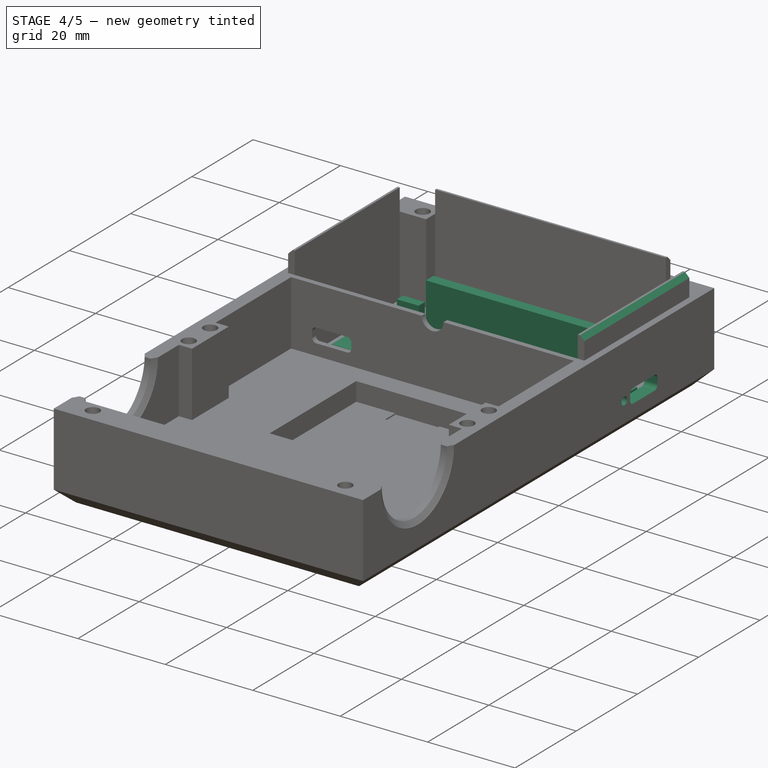
[diagram: stage 4 of 5 — iso view after this stage's code; geometry added in this stage tinted green]
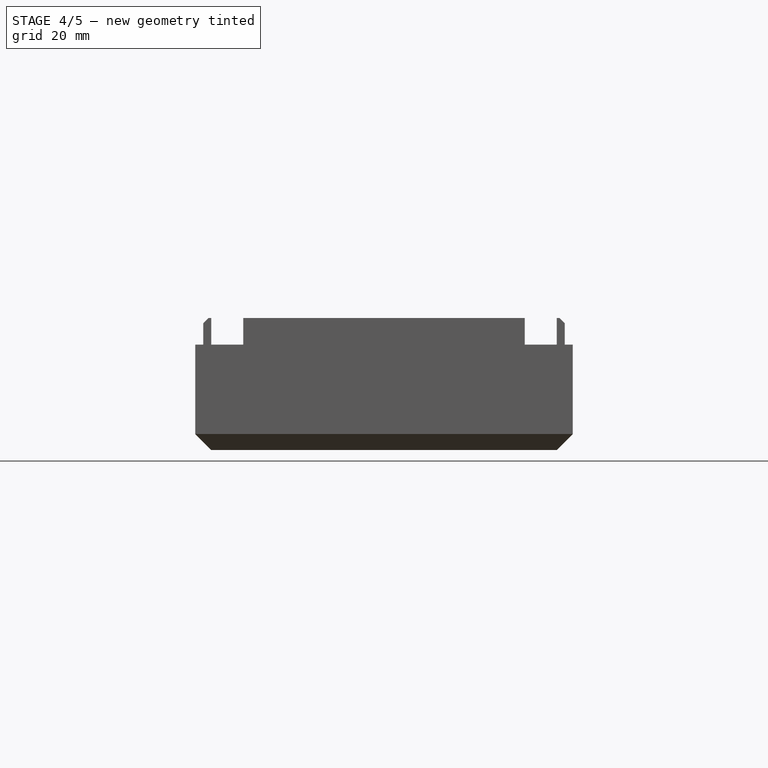
[diagram: stage 4 of 5 — front view after this stage's code; geometry added in this stage tinted green]
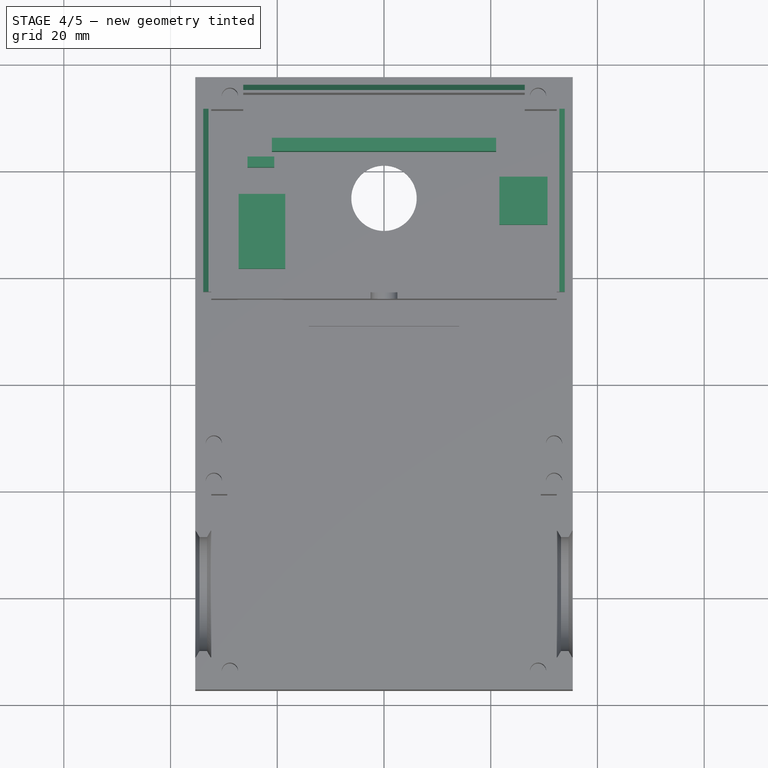
[diagram: stage 4 of 5 — top view after this stage's code; geometry added in this stage tinted green]
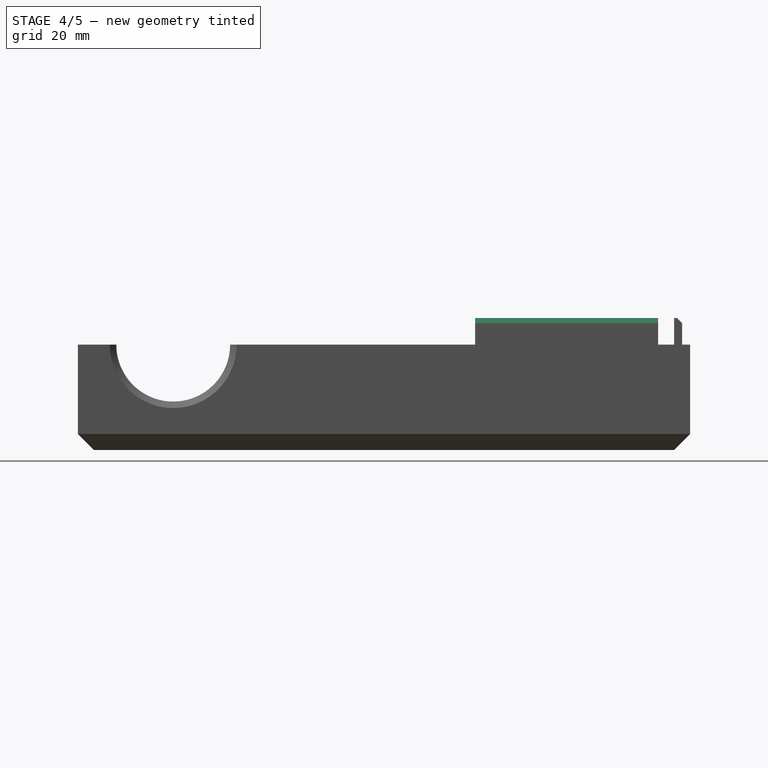
[diagram: stage 4 of 5 — right view after this stage's code; geometry added in this stage tinted green]
FEATURE [Sketcher::SketchObject] Sketch024
  ArcFitTolerance = 1e-06
  AttachmentSupport = -> [Pocket008]
  ExternalTypes = [0]
  FullyConstrained = true
  MakeInternals = false
  MapMode = 5
  Placement = pos=(0,0,1.5) rot=(0,0,1;0rad)
  _ExternalGeoVersion = 1
  expr: Constraints[10] = <<S>>.dimension_case_width / 2 - <<S>>.dimension_wall_thickness - (<<S>>.zero_width + 0.3) + <<S>>.zero_width / 2 + 2.5
  expr: Constraints[11] = (<<S>>.dimension_case_length + <<S>>.nipple_thread_diameter + <<S>>.dimension_adapter_wall_thickness * 2 + <<S>>.dimension_wall_thickness * 2) / 2 - <<S>>.dimension_wall_thickness * 2 - (<<S>>.nipple_thread_diameter + <<S>>.dimension_adapter_wall_thickness * 2) - <<S>>.sensor_length - 1.2 - <<S>>.zero_length
  expr: Constraints[8] = 5
  sketch-geometry (4):
    g0: LineSegment StartX=-25.575 StartY=42.725 StartZ=0 EndX=-25.575 EndY=40.725 EndZ=0
    g1: LineSegment StartX=-25.575 StartY=40.725 StartZ=0 EndX=-20.575 EndY=40.725 EndZ=0
    g2: LineSegment StartX=-20.575 StartY=40.725 StartZ=0 EndX=-20.575 EndY=42.725 EndZ=0
    g3: LineSegment StartX=-20.575 StartY=42.725 StartZ=0 EndX=-25.575 EndY=42.725 EndZ=0
  constraints (12):
    c: Coincident(g0,g1)
    c: Coincident(g1,g2)
    c: Coincident(g2,g3)
    c: Coincident(g3,g0)
    c: Vertical(g0)
    c: Vertical(g2)
    c: Horizontal(g1)
    c: Horizontal(g3)
    c: DistanceX(g3,g3) = 5
    c: DistanceY(g2,g2) = 2
    c: DistanceX(g0,g-1) = 25.575
    c: DistanceY(g1,g-1) = -40.725
FEATURE [PartDesign::Pad] Pad005  label="ZeroBackPad"
  BaseFeature = -> Pocket008
  Direction = (0,0,1)
  Length = 6
  Length2 = 10
  Profile = -> Sketch024
  ReferenceAxis = -> Sketch024 [N_Axis]
  Refine = true
  SideType = 0
  Suppressed = false
  Type = 0
  Type2 = 0
FEATURE [Sketcher::SketchObject] Sketch025
  ArcFitTolerance = 1e-06
  AttachmentSupport = -> [Pad005]
  ExternalTypes = [0]
  FullyConstrained = true
  MakeInternals = false
  MapMode = 5
  Placement = pos=(0,0,1.5) rot=(0,0,1;0rad)
  _ExternalGeoVersion = 1
  expr: Constraints[10] = <<S>>.battery_length / 2
  expr: Constraints[11] = (<<S>>.dimension_case_length + <<S>>.nipple_thread_diameter + <<S>>.dimension_adapter_wall_thickness * 2 + <<S>>.dimension_wall_thickness * 2) / 2 - <<S>>.dimension_wall_thickness - <<S>>.batter_depth
  expr: Constraints[8] = <<S>>.battery_length
  expr: Constraints[9] = 2.5
  sketch-geometry (4):
    g0: LineSegment StartX=-21 StartY=46.175 StartZ=0 EndX=-21 EndY=43.675 EndZ=0
    g1: LineSegment StartX=-21 StartY=43.675 StartZ=0 EndX=21 EndY=43.675 EndZ=0
    g2: LineSegment StartX=21 StartY=43.675 StartZ=0 EndX=21 EndY=46.175 EndZ=0
    g3: LineSegment StartX=21 StartY=46.175 StartZ=0 EndX=-21 EndY=46.175 EndZ=0
  constraints (12):
    c: Coincident(g0,g1)
    c: Coincident(g1,g2)
    c: Coincident(g2,g3)
    c: Coincident(g3,g0)
    c: Vertical(g0)
    c: Vertical(g2)
    c: Horizontal(g1)
    c: Horizontal(g3)
    c: DistanceX(g3,g3) = 42
    c: DistanceY(g2,g2) = 2.5
    c: DistanceX(g0,g-1) = 21
    c: DistanceY(g-1,g0) = 46.175
FEATURE [PartDesign::Pad] Pad006  label="BattPad"
  BaseFeature = -> Pad005
  Direction = (0,0,1)
  Length = 10
  Length2 = 10
  Profile = -> Sketch025
  ReferenceAxis = -> Sketch025 [N_Axis]
  Refine = true
  SideType = 0
  Suppressed = false
  Type = 0
  Type2 = 0
FEATURE [Sketcher::SketchObject] Sketch026
  ArcFitTolerance = 1e-06
  AttachmentSupport = -> [Pad006]
  ExternalTypes = [0]
  FullyConstrained = true
  MakeInternals = false
  MapMode = 5
  Placement = pos=(32.375,0,0) rot=(0.57735,-0.57735,-0.57735;2.0944rad)
  _ExternalGeoVersion = 1
  expr: Constraints[29] = <<S>>.zero_usb_thickness / 2 + 6
  expr: Constraints[4] = (<<S>>.dimension_case_length + <<S>>.nipple_thread_diameter + <<S>>.dimension_adapter_wall_thickness * 2 + <<S>>.dimension_wall_thickness * 2) / 2 - 6 - 17 + 4.5
  expr: Constraints[6] = <<S>>.zero_usb_width
  expr: Constraints[7] = <<S>>.zero_usb_thickness
  sketch-geometry (13):
    g0: LineSegment StartX=-38.875 StartY=8.25 StartZ=0 EndX=-38.875 EndY=7 EndZ=0
    g1: LineSegment StartX=-37.875 StartY=6 StartZ=0 EndX=-30.875 EndY=6 EndZ=0
    g2: LineSegment StartX=-29.875 StartY=7 StartZ=0 EndX=-29.875 EndY=8.25 EndZ=0
    g3: LineSegment StartX=-30.875 StartY=9.25 StartZ=0 EndX=-37.875 EndY=9.25 EndZ=0
    g4: ArcOfCircle CenterX=-37.875 CenterY=8.25 CenterZ=0 NormalX=0 NormalY=0 NormalZ=1 AngleXU=0 Radius=1 StartAngle=1.5708 EndAngle=3.14159
    g5: GeomPoint [constr] X=-38.875 Y=9.25 Z=0
    g6: ArcOfCircle CenterX=-30.875 CenterY=8.25 CenterZ=0 NormalX=0 NormalY=0 NormalZ=1 AngleXU=0 Radius=1 StartAngle=7e-16 EndAngle=1.5708
    g7: GeomPoint [constr] X=-29.875 Y=9.25 Z=0
    g8: ArcOfCircle CenterX=-30.875 CenterY=7 CenterZ=0 NormalX=0 NormalY=0 NormalZ=1 AngleXU=0 Radius=1 StartAngle=4.71239 EndAngle=6.28319
    g9: GeomPoint [constr] X=-29.875 Y=6 Z=0
    g10: ArcOfCircle CenterX=-37.875 CenterY=7 CenterZ=0 NormalX=0 NormalY=0 NormalZ=1 AngleXU=0 Radius=1 StartAngle=3.14159 EndAngle=4.71239
    g11: GeomPoint [constr] X=-38.875 Y=6 Z=0
    g12: Circle CenterX=-28 CenterY=7.625 CenterZ=0 NormalX=0 NormalY=0 NormalZ=1 AngleXU=0 Radius=0.9
  constraints (31):
    c: Vertical(g0)
    c: Vertical(g2)
    c: Horizontal(g1)
    c: Horizontal(g3)
    c: DistanceX(g11,g-1) = 38.875
    c: DistanceY(g-1,g9) = 6
    c: DistanceX(g5,g7) = 9
    c: DistanceY(g9,g7) = 3.25
    c: PointOnObject(g5,g0)
    c: PointOnObject(g5,g3)
    c: Tangent(g0,g4) = -1.5708
    c: Tangent(g3,g4) = -1.5708
    c: PointOnObject(g7,g3)
    c: PointOnObject(g7,g2)
    c: Tangent(g3,g6) = -1.5708
    c: Tangent(g2,g6) = -1.5708
    c: PointOnObject(g9,g2)
    c: PointOnObject(g9,g1)
    c: Tangent(g2,g8) = -1.5708
    c: Tangent(g1,g8) = -1.5708
    c: PointOnObject(g11,g1)
    c: PointOnObject(g11,g0)
    c: Tangent(g1,g10) = -1.5708
    c: Tangent(g0,g10) = -1.5708
    c: Equal(g4,g6)
    c: Equal(g4,g8)
    c: Equal(g4,g10)
    c: Diameter(g4) = 2
    c: Diameter(g12) = 1.8
    c: DistanceY(g-1,g12) = 7.625
    c: DistanceX(g12,g-1) = 28
FEATURE [PartDesign::Pocket] Pocket009  label="ChargerUSBPocket"
  BaseFeature = -> Pad006
  Direction = (1,0,0)
  Length = 1.5
  Length2 = 5
  Profile = -> Sketch026
  ReferenceAxis = -> Sketch026 [N_Axis]
  Refine = true
  SideType = 0
  Suppressed = false
  Type = 1
  Type2 = 0
FEATURE [Sketcher::SketchObject] Sketch027
  ArcFitTolerance = 1e-06
  AttachmentSupport = -> [Pocket009]
  ExternalTypes = [0]
  FullyConstrained = true
  MakeInternals = false
  MapMode = 5
  Placement = pos=(0,0,1.5) rot=(0,0,1;0rad)
  _ExternalGeoVersion = 1
  sketch-geometry (8):
    g0: LineSegment StartX=-27.25 StartY=35.75 StartZ=0 EndX=-27.25 EndY=21.75 EndZ=0
    g1: LineSegment StartX=-27.25 StartY=21.75 StartZ=0 EndX=-18.5 EndY=21.75 EndZ=0
    g2: LineSegment StartX=-18.5 StartY=21.75 StartZ=0 EndX=-18.5 EndY=35.75 EndZ=0
    g3: LineSegment StartX=-18.5 StartY=35.75 StartZ=0 EndX=-27.25 EndY=35.75 EndZ=0
    g4: LineSegment StartX=30.63 StartY=39 StartZ=0 EndX=21.63 EndY=39 EndZ=0
    g5: LineSegment StartX=21.63 StartY=39 StartZ=0 EndX=21.63 EndY=30 EndZ=0
    g6: LineSegment StartX=21.63 StartY=30 StartZ=0 EndX=30.63 EndY=30 EndZ=0
    g7: LineSegment StartX=30.63 StartY=30 StartZ=0 EndX=30.63 EndY=39 EndZ=0
  constraints (24):
    c: Coincident(g0,g1)
    c: Coincident(g1,g2)
    c: Coincident(g2,g3)
    c: Coincident(g3,g0)
    c: Vertical(g0)
    c: Vertical(g2)
    c: Horizontal(g1)
    c: Horizontal(g3)
    c: DistanceX(g3,g3) = 8.75
    c: DistanceY(g2,g2) = 14
    c: DistanceX(g1,g-1) = 18.5
    c: DistanceY(g-1,g1) = 21.75
    c: Coincident(g4,g5)
    c: Coincident(g5,g6)
    c: Coincident(g6,g7)
    c: Coincident(g7,g4)
    c: Horizontal(g4)
    c: Horizontal(g6)
    c: Vertical(g5)
    c: Vertical(g7)
    c: DistanceY(g7,g7) = 9
    c: DistanceX(g4,g4) = 9
    c: DistanceY(g-1,g5) = 30
    c: DistanceX(g-1,g5) = 21.63
FEATURE [PartDesign::Pad] Pad007  label="ZeroChargerPad"
  BaseFeature = -> Pocket009
  Direction = (0,0,1)
  Length = 3.5
  Length2 = 10
  Profile = -> Sketch027
  ReferenceAxis = -> Sketch027 [N_Axis]
  Refine = true
  SideType = 0
  Suppressed = false
  Type = 0
  Type2 = 0
FEATURE [PartDesign::Chamfer] Chamfer001
  Angle = 45
  Base = -> Pad007 [Edge149,Edge137,Edge125]
  BaseFeature = -> Pad007
  ChamferType = 0
  FlipDirection = false
  Refine = true
  Size = 1
  Size2 = 1
  SupportTransform = false
  Suppressed = false
  UseAllEdges = false
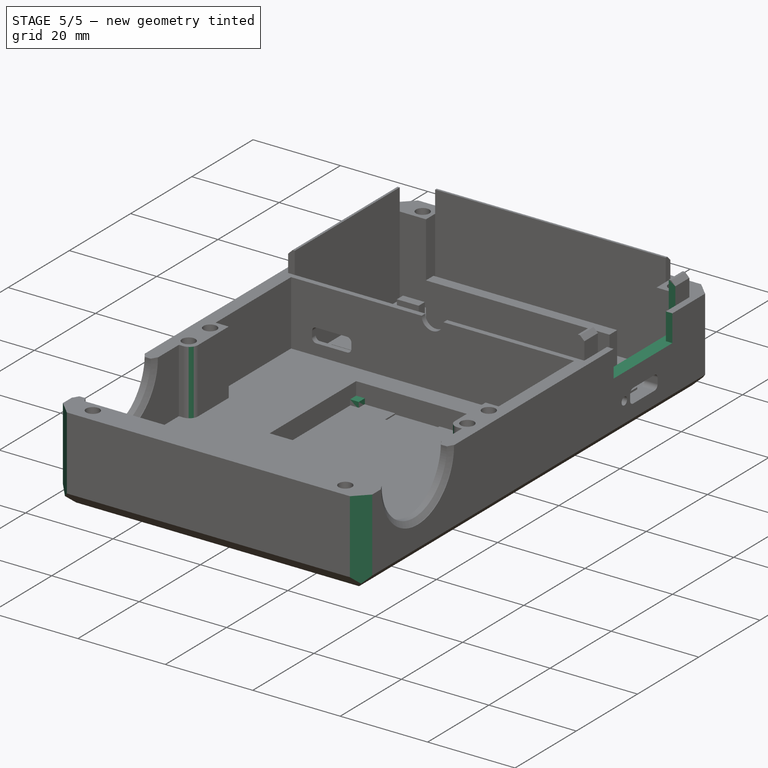
[diagram: stage 5 of 5 — iso view after this stage's code; geometry added in this stage tinted green]
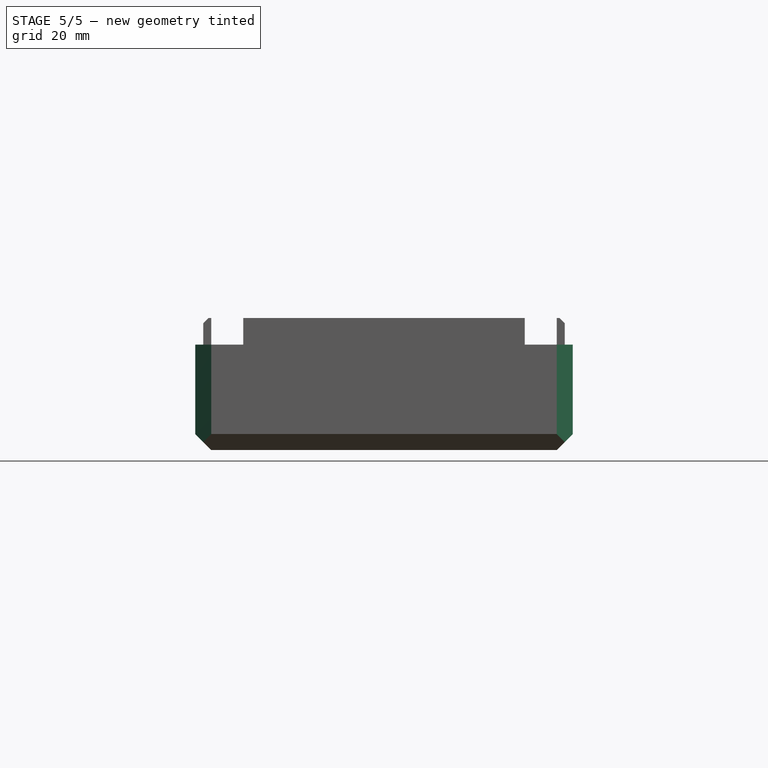
[diagram: stage 5 of 5 — front view after this stage's code; geometry added in this stage tinted green]
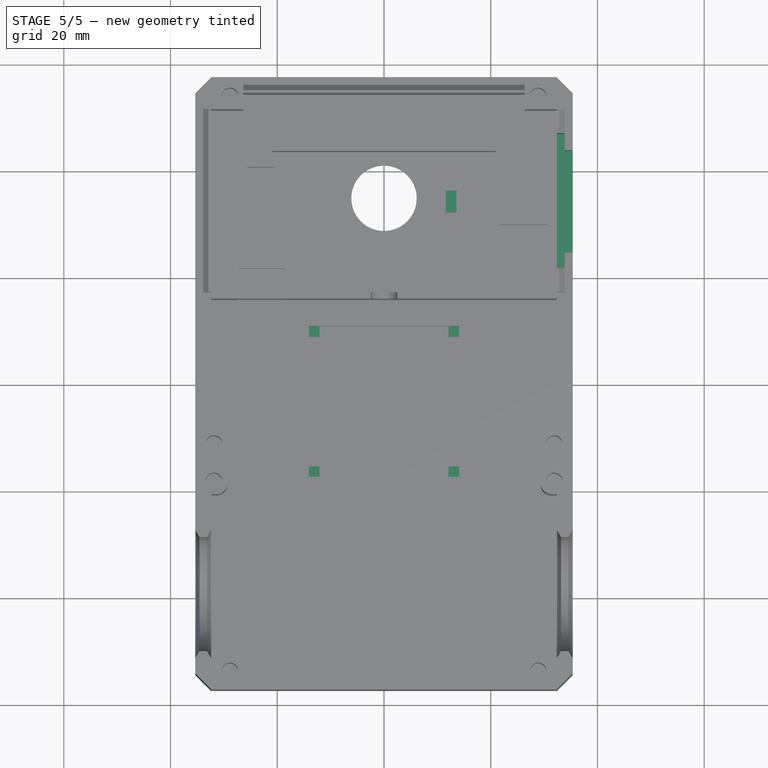
[diagram: stage 5 of 5 — top view after this stage's code; geometry added in this stage tinted green]
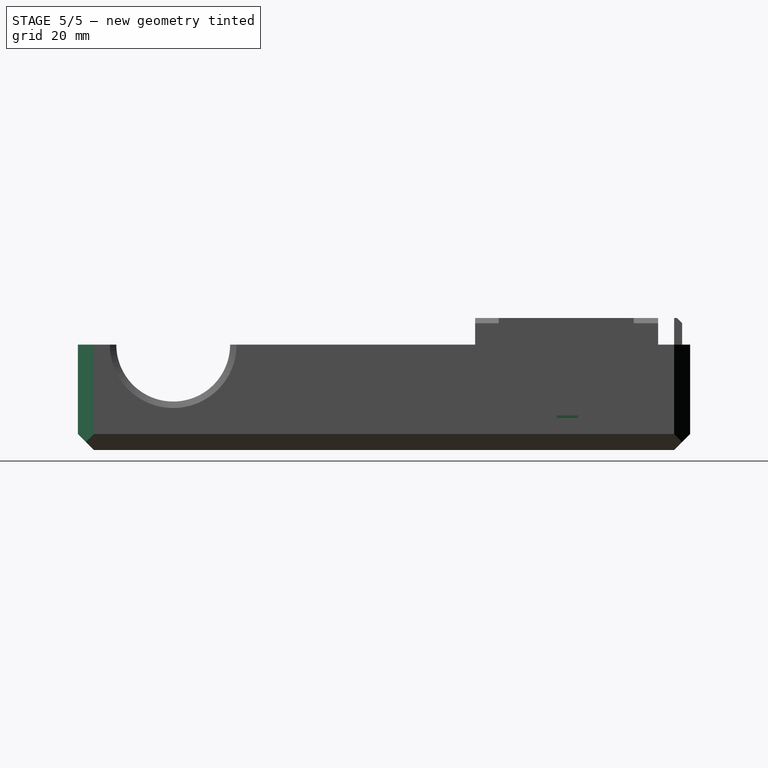
[diagram: stage 5 of 5 — right view after this stage's code; geometry added in this stage tinted green]
FEATURE [Sketcher::SketchObject] Sketch028
  ArcFitTolerance = 1e-06
  AttachmentSupport = -> [Chamfer001]
  ExternalTypes = [0]
  FullyConstrained = false
  MakeInternals = false
  MapMode = 5
  Placement = pos=(0,0,24.75) rot=(0,0,1;0rad)
  _ExternalGeoVersion = 1
  expr: Constraints[4] = <<S>>.switch_length
  expr: Constraints[6] = <<S>>.dimension_case_width / 2 - <<S>>.dimension_wall_thickness
  sketch-geometry (10):
    g0: LineSegment StartX=32.375 StartY=43.7997 StartZ=0 EndX=32.375 EndY=24.5 EndZ=0
    g1: LineSegment StartX=33.875 StartY=24.5 StartZ=0 EndX=35.375 EndY=24.5 EndZ=0
    g2: LineSegment StartX=35.375 StartY=24.5 StartZ=0 EndX=35.375 EndY=43.7 EndZ=0
    g3: LineSegment StartX=35.375 StartY=43.7 StartZ=0 EndX=33.875 EndY=43.7 EndZ=0
    g4: LineSegment StartX=32.375 StartY=43.7997 StartZ=0 EndX=32.375 EndY=46.7997 EndZ=0
    g5: LineSegment StartX=32.375 StartY=46.7997 StartZ=0 EndX=33.875 EndY=46.7997 EndZ=0
    g6: LineSegment StartX=33.875 StartY=46.7997 StartZ=0 EndX=33.875 EndY=43.7 EndZ=0
    g7: LineSegment StartX=32.375 StartY=24.5 StartZ=0 EndX=32.375 EndY=21.5 EndZ=0
    g8: LineSegment StartX=32.375 StartY=21.5 StartZ=0 EndX=33.875 EndY=21.5 EndZ=0
    g9: LineSegment StartX=33.875 StartY=21.5 StartZ=0 EndX=33.875 EndY=24.5 EndZ=0
  constraints (27):
    c: Coincident(g1,g2)
    c: Coincident(g2,g3)
    c: Vertical(g0)
    c: Vertical(g2)
    c: DistanceY(g2,g2) = 19.2
    c: DistanceY(g-1,g0) = 24.5
    c: DistanceX(g-1,g0) = 32.375
    c: Coincident(g0,g4)
    c: Vertical(g4)
    c: Coincident(g4,g5)
    c: Horizontal(g5)
    c: Coincident(g5,g6)
    c: Vertical(g6)
    c: Coincident(g0,g7)
    c: Vertical(g7)
    c: Coincident(g7,g8)
    c: Horizontal(g8)
    c: Coincident(g8,g9)
    c: Vertical(g9)
    c: Horizontal(g3)
    c: Coincident(g3,g6)
    c: Horizontal(g1)
    c: Coincident(g1,g9)
    c: DistanceX(g8,g8) = 1.5
    c: DistanceX(g5,g5) = 1.5
    c: DistanceY(g7,g7) = 3
    c: DistanceY(g4,g4) = 3
FEATURE [PartDesign::Pocket] Pocket010  label="SwitchHalfPocket"
  BaseFeature = -> Chamfer001
  Direction = (0,0,-1)
  Length = 11.15
  Length2 = 5
  Profile = -> Sketch028
  ReferenceAxis = -> Sketch028 [N_Axis]
  Refine = true
  SideType = 0
  Suppressed = false
  Type = 0
  Type2 = 0
  expr: Length = 5 + <<S>>.switch_width / 2
FEATURE [Sketcher::SketchObject] Sketch029
  ArcFitTolerance = 1e-06
  AttachmentSupport = -> [Pocket010]
  ExternalTypes = [0]
  FullyConstrained = true
  MakeInternals = false
  MapMode = 5
  Placement = pos=(0,0,0.5) rot=(0,0,1;0rad)
  _ExternalGeoVersion = 1
  expr: Constraints[21] = <<S>>.oled_width / 2
  expr: Constraints[22] = <<S>>.oled_width / 2
  expr: Constraints[23] = <<S>>.dimension_screen_vert
  expr: Constraints[47] = <<S>>.oled_length
  sketch-geometry (16):
    g0: LineSegment StartX=-14.075 StartY=11 StartZ=0 EndX=-14.075 EndY=9 EndZ=0
    g1: LineSegment StartX=-14.075 StartY=9 StartZ=0 EndX=-12.075 EndY=9 EndZ=0
    g2: LineSegment StartX=-12.075 StartY=9 StartZ=0 EndX=-12.075 EndY=11 EndZ=0
    g3: LineSegment StartX=-12.075 StartY=11 StartZ=0 EndX=-14.075 EndY=11 EndZ=0
    g4: LineSegment StartX=12.075 StartY=11 StartZ=0 EndX=12.075 EndY=9 EndZ=0
    g5: LineSegment StartX=12.075 StartY=9 StartZ=0 EndX=14.075 EndY=9 EndZ=0
    g6: LineSegment StartX=14.075 StartY=9 StartZ=0 EndX=14.075 EndY=11 EndZ=0
    g7: LineSegment StartX=14.075 StartY=11 StartZ=0 EndX=12.075 EndY=11 EndZ=0
    g8: LineSegment StartX=-14.075 StartY=-15.25 StartZ=0 EndX=-14.075 EndY=-17.25 EndZ=0
    g9: LineSegment StartX=-14.075 StartY=-17.25 StartZ=0 EndX=-12.075 EndY=-17.25 EndZ=0
    g10: LineSegment StartX=-12.075 StartY=-17.25 StartZ=0 EndX=-12.075 EndY=-15.25 EndZ=0
    g11: LineSegment StartX=-12.075 StartY=-15.25 StartZ=0 EndX=-14.075 EndY=-15.25 EndZ=0
    g12: LineSegment StartX=12.075 StartY=-15.25 StartZ=0 EndX=12.075 EndY=-17.25 EndZ=0
    g13: LineSegment StartX=12.075 StartY=-17.25 StartZ=0 EndX=14.075 EndY=-17.25 EndZ=0
    g14: LineSegment StartX=14.075 StartY=-17.25 StartZ=0 EndX=14.075 EndY=-15.25 EndZ=0
    g15: LineSegment StartX=14.075 StartY=-15.25 StartZ=0 EndX=12.075 EndY=-15.25 EndZ=0
  constraints (48):
    c: Coincident(g0,g1)
    c: Coincident(g1,g2)
    c: Coincident(g2,g3)
    c: Coincident(g3,g0)
    c: Vertical(g0)
    c: Vertical(g2)
    c: Horizontal(g1)
    c: Horizontal(g3)
    c: Distance(g0,g2) = 2
    c: Distance(g1,g3) = 2
    c: Coincident(g4,g5)
    c: Coincident(g5,g6)
    c: Coincident(g6,g7)
    c: Coincident(g7,g4)
    c: Vertical(g4)
    c: Vertical(g6)
    c: Horizontal(g5)
    c: Horizontal(g7)
    c: Distance(g4,g6) = 2
    c: Distance(g5,g7) = 2
    c: DistanceY(g4,g2) = 0
    c: DistanceX(g0,g-1) = 14.075
    c: DistanceX(g-1,g6) = 14.075
    c: DistanceY(g-1,g4) = 11
    c: Coincident(g8,g9)
    c: Coincident(g9,g10)
    c: Coincident(g10,g11)
    c: Coincident(g11,g8)
    c: Vertical(g8)
    c: Vertical(g10)
    c: Horizontal(g9)
    c: Horizontal(g11)
    c: Distance(g8,g10) = 2
    c: Distance(g9,g11) = 2
    c: Coincident(g12,g13)
    c: Coincident(g13,g14)
    c: Coincident(g14,g15)
    c: Coincident(g15,g12)
    c: Vertical(g12)
    c: Vertical(g14)
    c: Horizontal(g13)
    c: Horizontal(g15)
    c: Distance(g12,g14) = 2
    c: Distance(g13,g15) = 2
    c: DistanceX(g12,g4) = 0
    c: DistanceX(g1,g10) = 0
    c: DistanceY(g12,g10) = 0
    c: DistanceY(g12,g4) = 28.25
FEATURE [PartDesign::Pad] Pad008  label="ScreenPad"
  BaseFeature = -> Pocket010
  Direction = (0,0,1)
  Length = 1.5
  Length2 = 10
  Profile = -> Sketch029
  ReferenceAxis = -> Sketch029 [N_Axis]
  Refine = true
  SideType = 0
  Suppressed = false
  Type = 0
  Type2 = 0
FEATURE [Sketcher::SketchObject] Sketch030
  ArcFitTolerance = 1e-06
  AttachmentSupport = -> [Pad008]
  ExternalTypes = [0]
  FullyConstrained = true
  MakeInternals = false
  MapMode = 5
  Placement = pos=(0,0,1.5) rot=(0,0,1;0rad)
  _ExternalGeoVersion = 1
  expr: Constraints[10] = <<S>>.dimension_case_width / 2 - <<S>>.dimension_wall_thickness - 18.8
  sketch-geometry (4):
    g0: LineSegment StartX=11.575 StartY=36.37 StartZ=0 EndX=11.575 EndY=32.37 EndZ=0
    g1: LineSegment StartX=11.575 StartY=32.37 StartZ=0 EndX=13.575 EndY=32.37 EndZ=0
    g2: LineSegment StartX=13.575 StartY=32.37 StartZ=0 EndX=13.575 EndY=36.37 EndZ=0
    g3: LineSegment StartX=13.575 StartY=36.37 StartZ=0 EndX=11.575 EndY=36.37 EndZ=0
  constraints (12):
    c: Coincident(g0,g1)
    c: Coincident(g1,g2)
    c: Coincident(g2,g3)
    c: Coincident(g3,g0)
    c: Vertical(g0)
    c: Vertical(g2)
    c: Horizontal(g1)
    c: Horizontal(g3)
    c: Distance(g0,g2) = 2
    c: Distance(g1,g3) = 4
    c: DistanceX(g-1,g1) = 13.575
    c: DistanceY(g-1,g1) = 32.37
FEATURE [PartDesign::Pad] Pad009  label="ChargerPad"
  BaseFeature = -> Pad008
  Direction = (0,0,1)
  Length = 5
  Length2 = 10
  Profile = -> Sketch030
  ReferenceAxis = -> Sketch030 [N_Axis]
  Refine = true
  SideType = 0
  Suppressed = false
  Type = 0
  Type2 = 0
FEATURE [PartDesign::Chamfer] Chamfer002  label="EdgesChamfers"
  Angle = 45
  Base = -> Pad009 [Edge57,Edge50,Edge212,Edge171]
  BaseFeature = -> Pad009
  ChamferType = 0
  FlipDirection = false
  Refine = true
  Size = 3
  Size2 = 1
  SupportTransform = false
  Suppressed = false
  UseAllEdges = false
FEATURE [PartDesign::Fillet] Fillet
  Base = -> Chamfer002 [Edge216,Edge166]
  BaseFeature = -> Chamfer002
  Radius = 2
  Refine = true
  SupportTransform = false
  Suppressed = false
  UseAllEdges = false
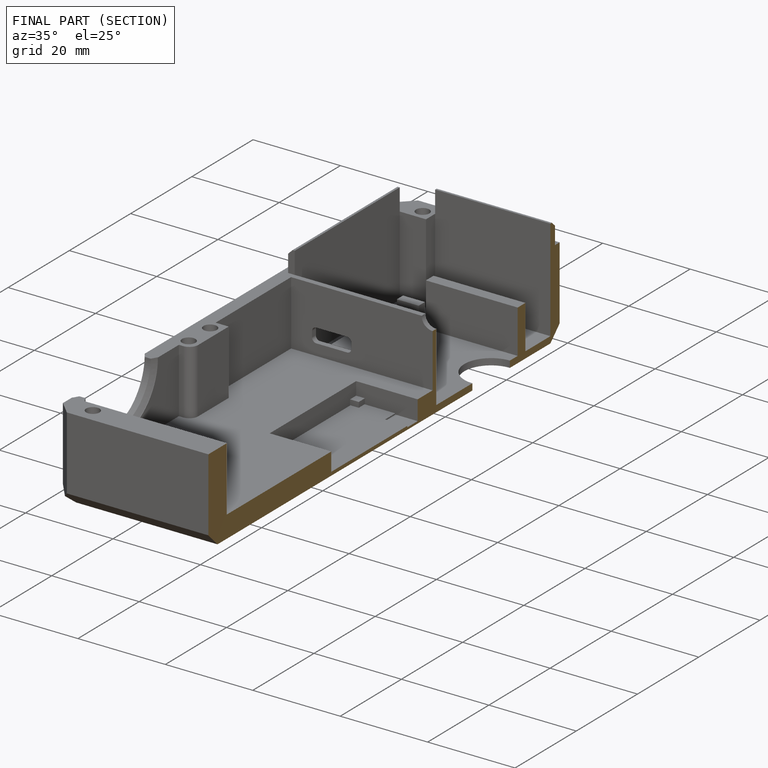
[diagram: finished part — half-section view (interior)]
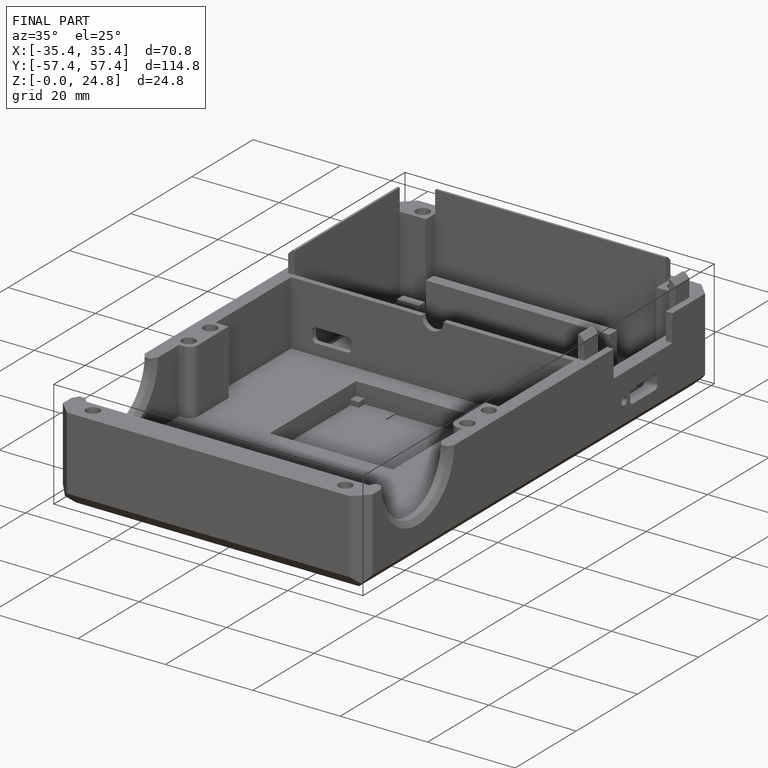
[diagram: finished part — iso view with bounding-box wireframe]
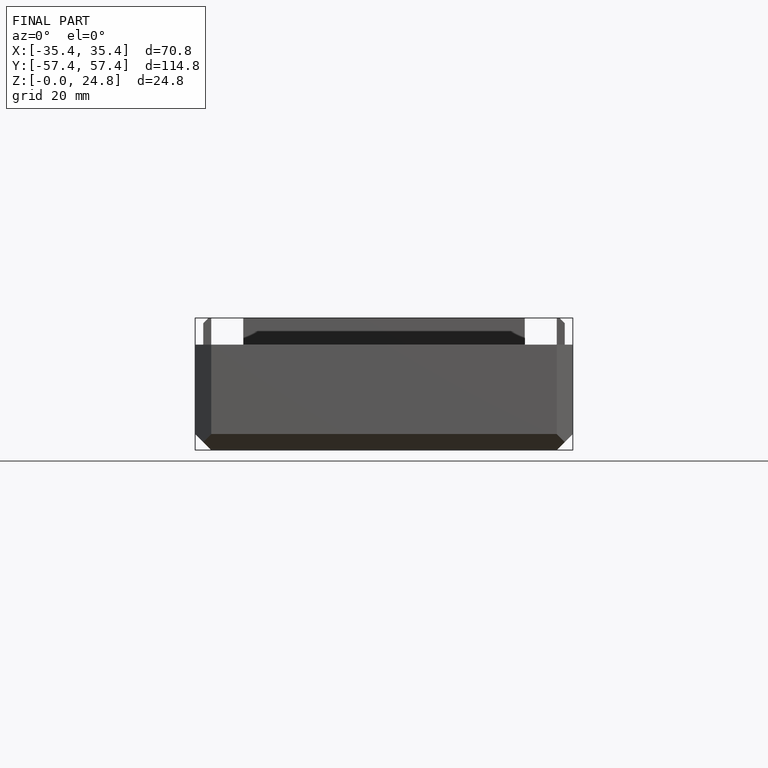
[diagram: finished part — front view with bounding-box wireframe]
